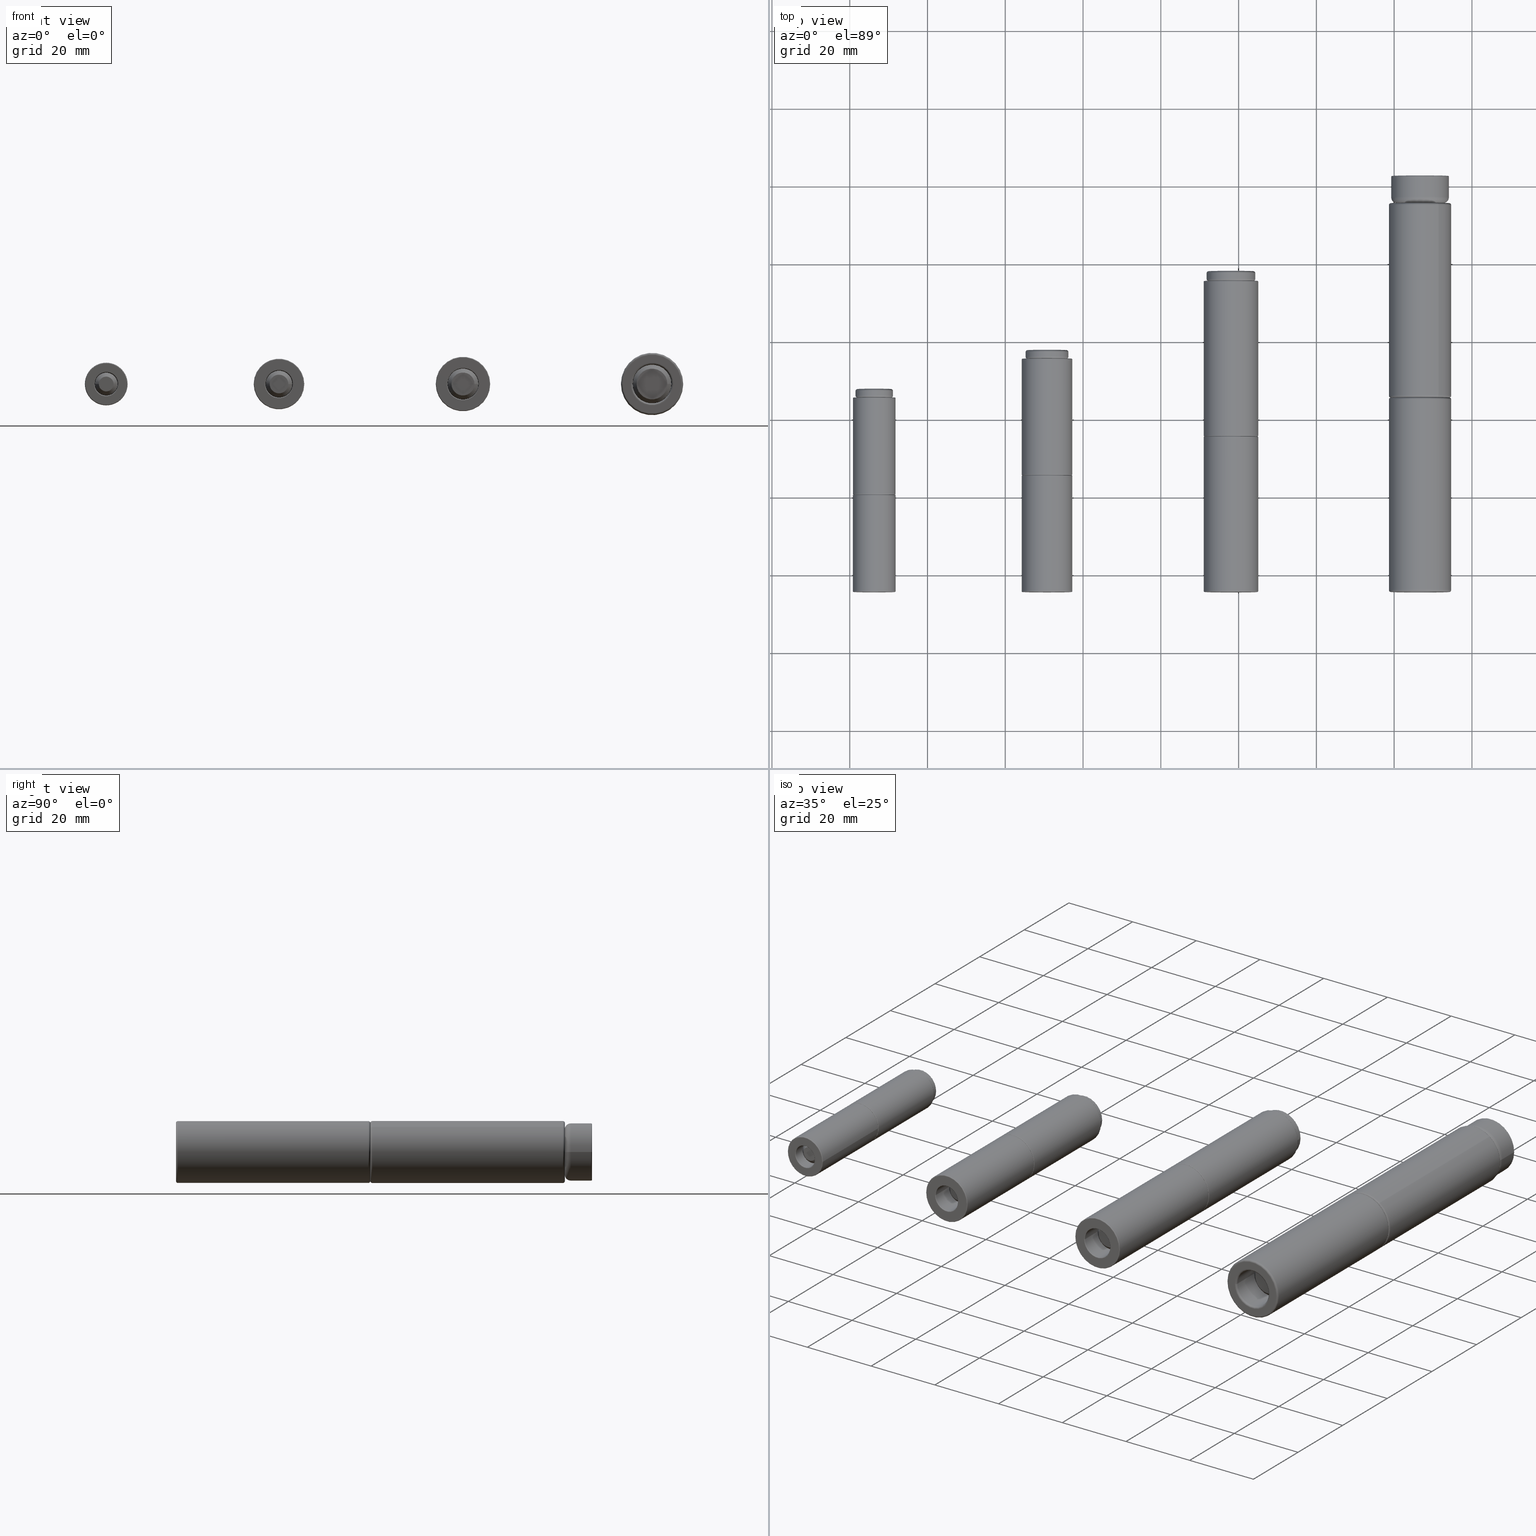
[diagram: canonical four-view strip — front | top / right | iso, engineering-drawing reading convention]
A machine part, canonical four-view strip (front | top / right | iso — engineering-drawing reading convention). The complete STEP part file that produces these views, byte-faithful:
ISO-10303-21;
HEADER;
/* Generated by software containing ST-Developer
 * from STEP Tools, Inc. (www.steptools.com) 
 */

FILE_DESCRIPTION(
/* description */ (''),
/* implementation_level */ '2;1');

FILE_NAME(
/* name */ '\\\\SYNOLOGYNAS\\web\\db2\\H-PT50-11_M\\\X2\B3C4BA74\X0\\\
H-PT50-11_M.stp',
/* time_stamp */ '2025-06-09T17:57:31+09:00',
/* author */ ('user'),
/* organization */ (''),
/* preprocessor_version */ 'ST-DEVELOPER v15.6',
/* originating_system */ 'Autodesk Inventor 2015',
/* authorisation */ '');

FILE_SCHEMA (('AUTOMOTIVE_DESIGN { 1 0 10303 214 3 1 1 }'));
ENDSEC;

DATA;
#10=MECHANICAL_DESIGN_GEOMETRIC_PRESENTATION_REPRESENTATION('',(#101,#102,
#95,#96,#98,#97,#99,#100),#1482);
#11=ITEM_DEFINED_TRANSFORMATION($,$,#783,#817);
#12=ITEM_DEFINED_TRANSFORMATION($,$,#800,#818);
#13=ITEM_DEFINED_TRANSFORMATION($,$,#783,#819);
#14=ITEM_DEFINED_TRANSFORMATION($,$,#820,#854);
#15=ITEM_DEFINED_TRANSFORMATION($,$,#837,#855);
#16=ITEM_DEFINED_TRANSFORMATION($,$,#820,#856);
#17=ITEM_DEFINED_TRANSFORMATION($,$,#857,#891);
#18=ITEM_DEFINED_TRANSFORMATION($,$,#857,#892);
#19=ITEM_DEFINED_TRANSFORMATION($,$,#874,#893);
#20=ITEM_DEFINED_TRANSFORMATION($,$,#894,#928);
#21=ITEM_DEFINED_TRANSFORMATION($,$,#894,#929);
#22=ITEM_DEFINED_TRANSFORMATION($,$,#911,#930);
#23=ITEM_DEFINED_TRANSFORMATION($,$,#816,#932);
#24=ITEM_DEFINED_TRANSFORMATION($,$,#853,#933);
#25=ITEM_DEFINED_TRANSFORMATION($,$,#890,#934);
#26=ITEM_DEFINED_TRANSFORMATION($,$,#927,#935);
#27=(
REPRESENTATION_RELATIONSHIP($,$,#1531,#1533)
REPRESENTATION_RELATIONSHIP_WITH_TRANSFORMATION(#11)
SHAPE_REPRESENTATION_RELATIONSHIP()
);
#28=(
REPRESENTATION_RELATIONSHIP($,$,#1532,#1533)
REPRESENTATION_RELATIONSHIP_WITH_TRANSFORMATION(#12)
SHAPE_REPRESENTATION_RELATIONSHIP()
);
#29=(
REPRESENTATION_RELATIONSHIP($,$,#1531,#1533)
REPRESENTATION_RELATIONSHIP_WITH_TRANSFORMATION(#13)
SHAPE_REPRESENTATION_RELATIONSHIP()
);
#30=(
REPRESENTATION_RELATIONSHIP($,$,#1534,#1536)
REPRESENTATION_RELATIONSHIP_WITH_TRANSFORMATION(#14)
SHAPE_REPRESENTATION_RELATIONSHIP()
);
#31=(
REPRESENTATION_RELATIONSHIP($,$,#1535,#1536)
REPRESENTATION_RELATIONSHIP_WITH_TRANSFORMATION(#15)
SHAPE_REPRESENTATION_RELATIONSHIP()
);
#32=(
REPRESENTATION_RELATIONSHIP($,$,#1534,#1536)
REPRESENTATION_RELATIONSHIP_WITH_TRANSFORMATION(#16)
SHAPE_REPRESENTATION_RELATIONSHIP()
);
#33=(
REPRESENTATION_RELATIONSHIP($,$,#1537,#1539)
REPRESENTATION_RELATIONSHIP_WITH_TRANSFORMATION(#17)
SHAPE_REPRESENTATION_RELATIONSHIP()
);
#34=(
REPRESENTATION_RELATIONSHIP($,$,#1537,#1539)
REPRESENTATION_RELATIONSHIP_WITH_TRANSFORMATION(#18)
SHAPE_REPRESENTATION_RELATIONSHIP()
);
#35=(
REPRESENTATION_RELATIONSHIP($,$,#1538,#1539)
REPRESENTATION_RELATIONSHIP_WITH_TRANSFORMATION(#19)
SHAPE_REPRESENTATION_RELATIONSHIP()
);
#36=(
REPRESENTATION_RELATIONSHIP($,$,#1540,#1542)
REPRESENTATION_RELATIONSHIP_WITH_TRANSFORMATION(#20)
SHAPE_REPRESENTATION_RELATIONSHIP()
);
#37=(
REPRESENTATION_RELATIONSHIP($,$,#1540,#1542)
REPRESENTATION_RELATIONSHIP_WITH_TRANSFORMATION(#21)
SHAPE_REPRESENTATION_RELATIONSHIP()
);
#38=(
REPRESENTATION_RELATIONSHIP($,$,#1541,#1542)
REPRESENTATION_RELATIONSHIP_WITH_TRANSFORMATION(#22)
SHAPE_REPRESENTATION_RELATIONSHIP()
);
#39=(
REPRESENTATION_RELATIONSHIP($,$,#1533,#1543)
REPRESENTATION_RELATIONSHIP_WITH_TRANSFORMATION(#23)
SHAPE_REPRESENTATION_RELATIONSHIP()
);
#40=(
REPRESENTATION_RELATIONSHIP($,$,#1536,#1543)
REPRESENTATION_RELATIONSHIP_WITH_TRANSFORMATION(#24)
SHAPE_REPRESENTATION_RELATIONSHIP()
);
#41=(
REPRESENTATION_RELATIONSHIP($,$,#1539,#1543)
REPRESENTATION_RELATIONSHIP_WITH_TRANSFORMATION(#25)
SHAPE_REPRESENTATION_RELATIONSHIP()
);
#42=(
REPRESENTATION_RELATIONSHIP($,$,#1542,#1543)
REPRESENTATION_RELATIONSHIP_WITH_TRANSFORMATION(#26)
SHAPE_REPRESENTATION_RELATIONSHIP()
);
#43=CONTEXT_DEPENDENT_SHAPE_REPRESENTATION(#27,#1505);
#44=CONTEXT_DEPENDENT_SHAPE_REPRESENTATION(#28,#1506);
#45=CONTEXT_DEPENDENT_SHAPE_REPRESENTATION(#29,#1507);
#46=CONTEXT_DEPENDENT_SHAPE_REPRESENTATION(#30,#1511);
#47=CONTEXT_DEPENDENT_SHAPE_REPRESENTATION(#31,#1512);
#48=CONTEXT_DEPENDENT_SHAPE_REPRESENTATION(#32,#1513);
#49=CONTEXT_DEPENDENT_SHAPE_REPRESENTATION(#33,#1517);
#50=CONTEXT_DEPENDENT_SHAPE_REPRESENTATION(#34,#1518);
#51=CONTEXT_DEPENDENT_SHAPE_REPRESENTATION(#35,#1519);
#52=CONTEXT_DEPENDENT_SHAPE_REPRESENTATION(#36,#1523);
#53=CONTEXT_DEPENDENT_SHAPE_REPRESENTATION(#37,#1524);
#54=CONTEXT_DEPENDENT_SHAPE_REPRESENTATION(#38,#1525);
#55=CONTEXT_DEPENDENT_SHAPE_REPRESENTATION(#39,#1527);
#56=CONTEXT_DEPENDENT_SHAPE_REPRESENTATION(#40,#1528);
#57=CONTEXT_DEPENDENT_SHAPE_REPRESENTATION(#41,#1529);
#58=CONTEXT_DEPENDENT_SHAPE_REPRESENTATION(#42,#1530);
#59=NEXT_ASSEMBLY_USAGE_OCCURRENCE('H-PT50-11P:1',$,$,#1547,#1545,$);
#60=NEXT_ASSEMBLY_USAGE_OCCURRENCE('H-PT50-11PP:1',$,$,#1547,#1546,$);
#61=NEXT_ASSEMBLY_USAGE_OCCURRENCE('H-PT50-11P:2',$,$,#1547,#1545,$);
#62=NEXT_ASSEMBLY_USAGE_OCCURRENCE('H-PT60-13P:1',$,$,#1550,#1548,$);
#63=NEXT_ASSEMBLY_USAGE_OCCURRENCE('H-PT60-13PP:1',$,$,#1550,#1549,$);
#64=NEXT_ASSEMBLY_USAGE_OCCURRENCE('H-PT60-13P:2',$,$,#1550,#1548,$);
#65=NEXT_ASSEMBLY_USAGE_OCCURRENCE('H-PT100-16P:1',$,$,#1553,#1551,$);
#66=NEXT_ASSEMBLY_USAGE_OCCURRENCE('H-PT100-16P:2',$,$,#1553,#1551,$);
#67=NEXT_ASSEMBLY_USAGE_OCCURRENCE('H-PT100-16PP:1',$,$,#1553,#1552,$);
#68=NEXT_ASSEMBLY_USAGE_OCCURRENCE('H-PT80-14P:1',$,$,#1556,#1554,$);
#69=NEXT_ASSEMBLY_USAGE_OCCURRENCE('H-PT80-14P:2',$,$,#1556,#1554,$);
#70=NEXT_ASSEMBLY_USAGE_OCCURRENCE('H-PT80-14PP:1',$,$,#1556,#1555,$);
#71=NEXT_ASSEMBLY_USAGE_OCCURRENCE('H-PT50-11:1',$,$,#1557,#1547,$);
#72=NEXT_ASSEMBLY_USAGE_OCCURRENCE('H-PT60-13:1',$,$,#1557,#1550,$);
#73=NEXT_ASSEMBLY_USAGE_OCCURRENCE('H-PT100-16:1',$,$,#1557,#1553,$);
#74=NEXT_ASSEMBLY_USAGE_OCCURRENCE('H-PT80-14:1',$,$,#1557,#1556,$);
#75=CONICAL_SURFACE('',#801,2.4,45.);
#76=CONICAL_SURFACE('',#838,2.9,45.);
#77=CONICAL_SURFACE('',#875,4.45,45.0000000000001);
#78=CONICAL_SURFACE('',#922,3.44999999999999,45.0000000000006);
#79=SHAPE_REPRESENTATION_RELATIONSHIP('SRR','None',#1531,#87);
#80=SHAPE_REPRESENTATION_RELATIONSHIP('SRR','None',#1532,#88);
#81=SHAPE_REPRESENTATION_RELATIONSHIP('SRR','None',#1534,#89);
#82=SHAPE_REPRESENTATION_RELATIONSHIP('SRR','None',#1535,#90);
#83=SHAPE_REPRESENTATION_RELATIONSHIP('SRR','None',#1537,#91);
#84=SHAPE_REPRESENTATION_RELATIONSHIP('SRR','None',#1538,#92);
#85=SHAPE_REPRESENTATION_RELATIONSHIP('SRR','None',#1540,#93);
#86=SHAPE_REPRESENTATION_RELATIONSHIP('SRR','None',#1541,#94);
#87=ADVANCED_BREP_SHAPE_REPRESENTATION($,(#103),#1469);
#88=ADVANCED_BREP_SHAPE_REPRESENTATION($,(#104),#1470);
#89=ADVANCED_BREP_SHAPE_REPRESENTATION($,(#105),#1472);
#90=ADVANCED_BREP_SHAPE_REPRESENTATION($,(#106),#1473);
#91=ADVANCED_BREP_SHAPE_REPRESENTATION($,(#107),#1475);
#92=ADVANCED_BREP_SHAPE_REPRESENTATION($,(#108),#1476);
#93=ADVANCED_BREP_SHAPE_REPRESENTATION($,(#109),#1478);
#94=ADVANCED_BREP_SHAPE_REPRESENTATION($,(#110),#1479);
#95=STYLED_ITEM('',(#1604),#103);
#96=STYLED_ITEM('',(#1605),#104);
#97=STYLED_ITEM('',(#1606),#105);
#98=STYLED_ITEM('',(#1607),#106);
#99=STYLED_ITEM('',(#1608),#107);
#100=STYLED_ITEM('',(#1609),#108);
#101=STYLED_ITEM('',(#1610),#109);
#102=STYLED_ITEM('',(#1611),#110);
#103=MANIFOLD_SOLID_BREP('\X2\C194B9ACB4DC\X0\1',#775);
#104=MANIFOLD_SOLID_BREP('\X2\C194B9ACB4DC\X0\1',#776);
#105=MANIFOLD_SOLID_BREP('\X2\C194B9ACB4DC\X0\1',#777);
#106=MANIFOLD_SOLID_BREP('\X2\C194B9ACB4DC\X0\1',#778);
#107=MANIFOLD_SOLID_BREP('\X2\C194B9ACB4DC\X0\1',#779);
#108=MANIFOLD_SOLID_BREP('\X2\C194B9ACB4DC\X0\2',#780);
#109=MANIFOLD_SOLID_BREP('\X2\C194B9ACB4DC\X0\1',#781);
#110=MANIFOLD_SOLID_BREP('\X2\C194B9ACB4DC\X0\2',#782);
#111=PLANE('',#789);
#112=PLANE('',#793);
#113=PLANE('',#804);
#114=PLANE('',#812);
#115=PLANE('',#815);
#116=PLANE('',#824);
#117=PLANE('',#834);
#118=PLANE('',#841);
#119=PLANE('',#849);
#120=PLANE('',#852);
#121=PLANE('',#861);
#122=PLANE('',#871);
#123=PLANE('',#878);
#124=PLANE('',#886);
#125=PLANE('',#889);
#126=PLANE('',#898);
#127=PLANE('',#908);
#128=PLANE('',#917);
#129=PLANE('',#920);
#130=PLANE('',#925);
#131=CYLINDRICAL_SURFACE('',#787,3.);
#132=CYLINDRICAL_SURFACE('',#797,5.5);
#133=CYLINDRICAL_SURFACE('',#805,2.9);
#134=CYLINDRICAL_SURFACE('',#810,4.8);
#135=CYLINDRICAL_SURFACE('',#826,3.5);
#136=CYLINDRICAL_SURFACE('',#830,6.5);
#137=CYLINDRICAL_SURFACE('',#842,3.4);
#138=CYLINDRICAL_SURFACE('',#847,5.5);
#139=CYLINDRICAL_SURFACE('',#863,5.);
#140=CYLINDRICAL_SURFACE('',#867,8.);
#141=CYLINDRICAL_SURFACE('',#879,4.95);
#142=CYLINDRICAL_SURFACE('',#884,7.4);
#143=CYLINDRICAL_SURFACE('',#900,7.);
#144=CYLINDRICAL_SURFACE('',#904,4.);
#145=CYLINDRICAL_SURFACE('',#915,6.25);
#146=CYLINDRICAL_SURFACE('',#926,3.95);
#147=FACE_BOUND('',#268,.T.);
#148=FACE_BOUND('',#270,.T.);
#149=FACE_BOUND('',#272,.T.);
#150=FACE_BOUND('',#274,.T.);
#151=FACE_BOUND('',#276,.T.);
#152=FACE_BOUND('',#278,.T.);
#153=FACE_BOUND('',#280,.T.);
#154=FACE_BOUND('',#282,.T.);
#155=FACE_BOUND('',#284,.T.);
#156=FACE_BOUND('',#287,.T.);
#157=FACE_BOUND('',#289,.T.);
#158=FACE_BOUND('',#291,.T.);
#159=FACE_BOUND('',#293,.T.);
#160=FACE_BOUND('',#295,.T.);
#161=FACE_BOUND('',#298,.T.);
#162=FACE_BOUND('',#300,.T.);
#163=FACE_BOUND('',#302,.T.);
#164=FACE_BOUND('',#304,.T.);
#165=FACE_BOUND('',#306,.T.);
#166=FACE_BOUND('',#308,.T.);
#167=FACE_BOUND('',#310,.T.);
#168=FACE_BOUND('',#312,.T.);
#169=FACE_BOUND('',#314,.T.);
#170=FACE_BOUND('',#317,.T.);
#171=FACE_BOUND('',#319,.T.);
#172=FACE_BOUND('',#321,.T.);
#173=FACE_BOUND('',#324,.T.);
#174=FACE_BOUND('',#326,.T.);
#175=FACE_BOUND('',#328,.T.);
#176=FACE_BOUND('',#330,.T.);
#177=FACE_BOUND('',#332,.T.);
#178=FACE_BOUND('',#334,.T.);
#179=FACE_BOUND('',#336,.T.);
#180=FACE_BOUND('',#338,.T.);
#181=FACE_BOUND('',#340,.T.);
#182=FACE_BOUND('',#342,.T.);
#183=FACE_BOUND('',#344,.T.);
#184=FACE_BOUND('',#347,.T.);
#185=FACE_BOUND('',#349,.T.);
#186=FACE_BOUND('',#351,.T.);
#187=FACE_BOUND('',#354,.T.);
#188=FACE_BOUND('',#356,.T.);
#189=FACE_BOUND('',#358,.T.);
#190=FACE_BOUND('',#360,.T.);
#191=FACE_BOUND('',#362,.T.);
#192=FACE_BOUND('',#364,.T.);
#193=FACE_BOUND('',#366,.T.);
#194=FACE_BOUND('',#368,.T.);
#195=FACE_BOUND('',#370,.T.);
#196=FACE_BOUND('',#372,.T.);
#197=FACE_BOUND('',#374,.T.);
#198=FACE_BOUND('',#376,.T.);
#199=FACE_BOUND('',#379,.T.);
#200=FACE_BOUND('',#381,.T.);
#201=FACE_BOUND('',#383,.T.);
#202=FACE_BOUND('',#386,.T.);
#203=FACE_OUTER_BOUND('',#267,.T.);
#204=FACE_OUTER_BOUND('',#269,.T.);
#205=FACE_OUTER_BOUND('',#271,.T.);
#206=FACE_OUTER_BOUND('',#273,.T.);
#207=FACE_OUTER_BOUND('',#275,.T.);
#208=FACE_OUTER_BOUND('',#277,.T.);
#209=FACE_OUTER_BOUND('',#279,.T.);
#210=FACE_OUTER_BOUND('',#281,.T.);
#211=FACE_OUTER_BOUND('',#283,.T.);
#212=FACE_OUTER_BOUND('',#285,.T.);
#213=FACE_OUTER_BOUND('',#286,.T.);
#214=FACE_OUTER_BOUND('',#288,.T.);
#215=FACE_OUTER_BOUND('',#290,.T.);
#216=FACE_OUTER_BOUND('',#292,.T.);
#217=FACE_OUTER_BOUND('',#294,.T.);
#218=FACE_OUTER_BOUND('',#296,.T.);
#219=FACE_OUTER_BOUND('',#297,.T.);
#220=FACE_OUTER_BOUND('',#299,.T.);
#221=FACE_OUTER_BOUND('',#301,.T.);
#222=FACE_OUTER_BOUND('',#303,.T.);
#223=FACE_OUTER_BOUND('',#305,.T.);
#224=FACE_OUTER_BOUND('',#307,.T.);
#225=FACE_OUTER_BOUND('',#309,.T.);
#226=FACE_OUTER_BOUND('',#311,.T.);
#227=FACE_OUTER_BOUND('',#313,.T.);
#228=FACE_OUTER_BOUND('',#315,.T.);
#229=FACE_OUTER_BOUND('',#316,.T.);
#230=FACE_OUTER_BOUND('',#318,.T.);
#231=FACE_OUTER_BOUND('',#320,.T.);
#232=FACE_OUTER_BOUND('',#322,.T.);
#233=FACE_OUTER_BOUND('',#323,.T.);
#234=FACE_OUTER_BOUND('',#325,.T.);
#235=FACE_OUTER_BOUND('',#327,.T.);
#236=FACE_OUTER_BOUND('',#329,.T.);
#237=FACE_OUTER_BOUND('',#331,.T.);
#238=FACE_OUTER_BOUND('',#333,.T.);
#239=FACE_OUTER_BOUND('',#335,.T.);
#240=FACE_OUTER_BOUND('',#337,.T.);
#241=FACE_OUTER_BOUND('',#339,.T.);
#242=FACE_OUTER_BOUND('',#341,.T.);
#243=FACE_OUTER_BOUND('',#343,.T.);
#244=FACE_OUTER_BOUND('',#345,.T.);
#245=FACE_OUTER_BOUND('',#346,.T.);
#246=FACE_OUTER_BOUND('',#348,.T.);
#247=FACE_OUTER_BOUND('',#350,.T.);
#248=FACE_OUTER_BOUND('',#352,.T.);
#249=FACE_OUTER_BOUND('',#353,.T.);
#250=FACE_OUTER_BOUND('',#355,.T.);
#251=FACE_OUTER_BOUND('',#357,.T.);
#252=FACE_OUTER_BOUND('',#359,.T.);
#253=FACE_OUTER_BOUND('',#361,.T.);
#254=FACE_OUTER_BOUND('',#363,.T.);
#255=FACE_OUTER_BOUND('',#365,.T.);
#256=FACE_OUTER_BOUND('',#367,.T.);
#257=FACE_OUTER_BOUND('',#369,.T.);
#258=FACE_OUTER_BOUND('',#371,.T.);
#259=FACE_OUTER_BOUND('',#373,.T.);
#260=FACE_OUTER_BOUND('',#375,.T.);
#261=FACE_OUTER_BOUND('',#377,.T.);
#262=FACE_OUTER_BOUND('',#378,.T.);
#263=FACE_OUTER_BOUND('',#380,.T.);
#264=FACE_OUTER_BOUND('',#382,.T.);
#265=FACE_OUTER_BOUND('',#384,.T.);
#266=FACE_OUTER_BOUND('',#385,.T.);
#267=EDGE_LOOP('',(#567));
#268=EDGE_LOOP('',(#568));
#269=EDGE_LOOP('',(#569));
#270=EDGE_LOOP('',(#570));
#271=EDGE_LOOP('',(#571));
#272=EDGE_LOOP('',(#572));
#273=EDGE_LOOP('',(#573));
#274=EDGE_LOOP('',(#574));
#275=EDGE_LOOP('',(#575));
#276=EDGE_LOOP('',(#576));
#277=EDGE_LOOP('',(#577));
#278=EDGE_LOOP('',(#578));
#279=EDGE_LOOP('',(#579));
#280=EDGE_LOOP('',(#580));
#281=EDGE_LOOP('',(#581));
#282=EDGE_LOOP('',(#582));
#283=EDGE_LOOP('',(#583));
#284=EDGE_LOOP('',(#584));
#285=EDGE_LOOP('',(#585));
#286=EDGE_LOOP('',(#586));
#287=EDGE_LOOP('',(#587));
#288=EDGE_LOOP('',(#588));
#289=EDGE_LOOP('',(#589));
#290=EDGE_LOOP('',(#590));
#291=EDGE_LOOP('',(#591));
#292=EDGE_LOOP('',(#592));
#293=EDGE_LOOP('',(#593));
#294=EDGE_LOOP('',(#594));
#295=EDGE_LOOP('',(#595));
#296=EDGE_LOOP('',(#596));
#297=EDGE_LOOP('',(#597));
#298=EDGE_LOOP('',(#598));
#299=EDGE_LOOP('',(#599));
#300=EDGE_LOOP('',(#600));
#301=EDGE_LOOP('',(#601));
#302=EDGE_LOOP('',(#602));
#303=EDGE_LOOP('',(#603));
#304=EDGE_LOOP('',(#604));
#305=EDGE_LOOP('',(#605));
#306=EDGE_LOOP('',(#606));
#307=EDGE_LOOP('',(#607));
#308=EDGE_LOOP('',(#608));
#309=EDGE_LOOP('',(#609));
#310=EDGE_LOOP('',(#610));
#311=EDGE_LOOP('',(#611));
#312=EDGE_LOOP('',(#612));
#313=EDGE_LOOP('',(#613));
#314=EDGE_LOOP('',(#614));
#315=EDGE_LOOP('',(#615));
#316=EDGE_LOOP('',(#616));
#317=EDGE_LOOP('',(#617));
#318=EDGE_LOOP('',(#618));
#319=EDGE_LOOP('',(#619));
#320=EDGE_LOOP('',(#620));
#321=EDGE_LOOP('',(#621));
#322=EDGE_LOOP('',(#622));
#323=EDGE_LOOP('',(#623));
#324=EDGE_LOOP('',(#624));
#325=EDGE_LOOP('',(#625));
#326=EDGE_LOOP('',(#626));
#327=EDGE_LOOP('',(#627));
#328=EDGE_LOOP('',(#628));
#329=EDGE_LOOP('',(#629));
#330=EDGE_LOOP('',(#630));
#331=EDGE_LOOP('',(#631));
#332=EDGE_LOOP('',(#632));
#333=EDGE_LOOP('',(#633));
#334=EDGE_LOOP('',(#634));
#335=EDGE_LOOP('',(#635));
#336=EDGE_LOOP('',(#636));
#337=EDGE_LOOP('',(#637));
#338=EDGE_LOOP('',(#638));
#339=EDGE_LOOP('',(#639));
#340=EDGE_LOOP('',(#640));
#341=EDGE_LOOP('',(#641));
#342=EDGE_LOOP('',(#642));
#343=EDGE_LOOP('',(#643));
#344=EDGE_LOOP('',(#644));
#345=EDGE_LOOP('',(#645));
#346=EDGE_LOOP('',(#646));
#347=EDGE_LOOP('',(#647));
#348=EDGE_LOOP('',(#648));
#349=EDGE_LOOP('',(#649));
#350=EDGE_LOOP('',(#650));
#351=EDGE_LOOP('',(#651));
#352=EDGE_LOOP('',(#652));
#353=EDGE_LOOP('',(#653));
#354=EDGE_LOOP('',(#654));
#355=EDGE_LOOP('',(#655));
#356=EDGE_LOOP('',(#656));
#357=EDGE_LOOP('',(#657));
#358=EDGE_LOOP('',(#658));
#359=EDGE_LOOP('',(#659));
#360=EDGE_LOOP('',(#660));
#361=EDGE_LOOP('',(#661));
#362=EDGE_LOOP('',(#662));
#363=EDGE_LOOP('',(#663));
#364=EDGE_LOOP('',(#664));
#365=EDGE_LOOP('',(#665));
#366=EDGE_LOOP('',(#666));
#367=EDGE_LOOP('',(#667));
#368=EDGE_LOOP('',(#668));
#369=EDGE_LOOP('',(#669));
#370=EDGE_LOOP('',(#670));
#371=EDGE_LOOP('',(#671));
#372=EDGE_LOOP('',(#672));
#373=EDGE_LOOP('',(#673));
#374=EDGE_LOOP('',(#674));
#375=EDGE_LOOP('',(#675));
#376=EDGE_LOOP('',(#676));
#377=EDGE_LOOP('',(#677));
#378=EDGE_LOOP('',(#678));
#379=EDGE_LOOP('',(#679));
#380=EDGE_LOOP('',(#680));
#381=EDGE_LOOP('',(#681));
#382=EDGE_LOOP('',(#682));
#383=EDGE_LOOP('',(#683));
#384=EDGE_LOOP('',(#684));
#385=EDGE_LOOP('',(#685));
#386=EDGE_LOOP('',(#686));
#387=CIRCLE('',#785,3.);
#388=CIRCLE('',#786,3.2);
#389=CIRCLE('',#788,3.);
#390=CIRCLE('',#790,5.3);
#391=CIRCLE('',#792,3.2);
#392=CIRCLE('',#794,5.3);
#393=CIRCLE('',#796,5.5);
#394=CIRCLE('',#798,5.5);
#395=CIRCLE('',#802,1.9);
#396=CIRCLE('',#803,2.9);
#397=CIRCLE('',#806,2.9);
#398=CIRCLE('',#808,4.3);
#399=CIRCLE('',#809,4.8);
#400=CIRCLE('',#811,4.8);
#401=CIRCLE('',#814,4.3);
#402=CIRCLE('',#822,3.5);
#403=CIRCLE('',#823,3.7);
#404=CIRCLE('',#825,6.3);
#405=CIRCLE('',#827,3.5);
#406=CIRCLE('',#829,6.5);
#407=CIRCLE('',#831,6.5);
#408=CIRCLE('',#833,3.7);
#409=CIRCLE('',#835,6.3);
#410=CIRCLE('',#839,2.4);
#411=CIRCLE('',#840,3.4);
#412=CIRCLE('',#843,3.4);
#413=CIRCLE('',#845,5.5);
#414=CIRCLE('',#846,5.);
#415=CIRCLE('',#848,5.5);
#416=CIRCLE('',#851,5.);
#417=CIRCLE('',#859,5.);
#418=CIRCLE('',#860,5.5);
#419=CIRCLE('',#862,7.5);
#420=CIRCLE('',#864,5.);
#421=CIRCLE('',#866,8.);
#422=CIRCLE('',#868,8.);
#423=CIRCLE('',#870,5.5);
#424=CIRCLE('',#872,7.5);
#425=CIRCLE('',#876,3.95);
#426=CIRCLE('',#877,4.95);
#427=CIRCLE('',#880,4.95);
#428=CIRCLE('',#882,7.4);
#429=CIRCLE('',#883,7.2);
#430=CIRCLE('',#885,7.4);
#431=CIRCLE('',#888,5.9);
#432=CIRCLE('',#896,7.);
#433=CIRCLE('',#897,6.8);
#434=CIRCLE('',#899,4.2);
#435=CIRCLE('',#901,7.);
#436=CIRCLE('',#903,4.);
#437=CIRCLE('',#905,4.);
#438=CIRCLE('',#907,4.2);
#439=CIRCLE('',#909,6.8);
#440=CIRCLE('',#913,6.25);
#441=CIRCLE('',#914,5.75);
#442=CIRCLE('',#916,6.25);
#443=CIRCLE('',#919,5.75);
#444=CIRCLE('',#921,3.95000000000002);
#445=CIRCLE('',#923,2.94999999999998);
#446=CIRCLE('',#924,3.95);
#447=VERTEX_POINT('',#1244);
#448=VERTEX_POINT('',#1246);
#449=VERTEX_POINT('',#1249);
#450=VERTEX_POINT('',#1252);
#451=VERTEX_POINT('',#1255);
#452=VERTEX_POINT('',#1258);
#453=VERTEX_POINT('',#1261);
#454=VERTEX_POINT('',#1264);
#455=VERTEX_POINT('',#1269);
#456=VERTEX_POINT('',#1271);
#457=VERTEX_POINT('',#1275);
#458=VERTEX_POINT('',#1278);
#459=VERTEX_POINT('',#1280);
#460=VERTEX_POINT('',#1283);
#461=VERTEX_POINT('',#1287);
#462=VERTEX_POINT('',#1296);
#463=VERTEX_POINT('',#1298);
#464=VERTEX_POINT('',#1301);
#465=VERTEX_POINT('',#1304);
#466=VERTEX_POINT('',#1307);
#467=VERTEX_POINT('',#1310);
#468=VERTEX_POINT('',#1313);
#469=VERTEX_POINT('',#1316);
#470=VERTEX_POINT('',#1321);
#471=VERTEX_POINT('',#1323);
#472=VERTEX_POINT('',#1327);
#473=VERTEX_POINT('',#1330);
#474=VERTEX_POINT('',#1332);
#475=VERTEX_POINT('',#1335);
#476=VERTEX_POINT('',#1339);
#477=VERTEX_POINT('',#1348);
#478=VERTEX_POINT('',#1350);
#479=VERTEX_POINT('',#1353);
#480=VERTEX_POINT('',#1356);
#481=VERTEX_POINT('',#1359);
#482=VERTEX_POINT('',#1362);
#483=VERTEX_POINT('',#1365);
#484=VERTEX_POINT('',#1368);
#485=VERTEX_POINT('',#1373);
#486=VERTEX_POINT('',#1375);
#487=VERTEX_POINT('',#1379);
#488=VERTEX_POINT('',#1382);
#489=VERTEX_POINT('',#1384);
#490=VERTEX_POINT('',#1387);
#491=VERTEX_POINT('',#1391);
#492=VERTEX_POINT('',#1400);
#493=VERTEX_POINT('',#1402);
#494=VERTEX_POINT('',#1405);
#495=VERTEX_POINT('',#1408);
#496=VERTEX_POINT('',#1411);
#497=VERTEX_POINT('',#1414);
#498=VERTEX_POINT('',#1417);
#499=VERTEX_POINT('',#1420);
#500=VERTEX_POINT('',#1425);
#501=VERTEX_POINT('',#1427);
#502=VERTEX_POINT('',#1430);
#503=VERTEX_POINT('',#1434);
#504=VERTEX_POINT('',#1437);
#505=VERTEX_POINT('',#1440);
#506=VERTEX_POINT('',#1442);
#507=EDGE_CURVE('',#447,#447,#387,.T.);
#508=EDGE_CURVE('',#448,#448,#388,.T.);
#509=EDGE_CURVE('',#449,#449,#389,.T.);
#510=EDGE_CURVE('',#450,#450,#390,.T.);
#511=EDGE_CURVE('',#451,#451,#391,.T.);
#512=EDGE_CURVE('',#452,#452,#392,.T.);
#513=EDGE_CURVE('',#453,#453,#393,.T.);
#514=EDGE_CURVE('',#454,#454,#394,.T.);
#515=EDGE_CURVE('',#455,#455,#395,.T.);
#516=EDGE_CURVE('',#456,#456,#396,.T.);
#517=EDGE_CURVE('',#457,#457,#397,.T.);
#518=EDGE_CURVE('',#458,#458,#398,.T.);
#519=EDGE_CURVE('',#459,#459,#399,.T.);
#520=EDGE_CURVE('',#460,#460,#400,.T.);
#521=EDGE_CURVE('',#461,#461,#401,.T.);
#522=EDGE_CURVE('',#462,#462,#402,.T.);
#523=EDGE_CURVE('',#463,#463,#403,.T.);
#524=EDGE_CURVE('',#464,#464,#404,.T.);
#525=EDGE_CURVE('',#465,#465,#405,.T.);
#526=EDGE_CURVE('',#466,#466,#406,.T.);
#527=EDGE_CURVE('',#467,#467,#407,.T.);
#528=EDGE_CURVE('',#468,#468,#408,.T.);
#529=EDGE_CURVE('',#469,#469,#409,.T.);
#530=EDGE_CURVE('',#470,#470,#410,.T.);
#531=EDGE_CURVE('',#471,#471,#411,.T.);
#532=EDGE_CURVE('',#472,#472,#412,.T.);
#533=EDGE_CURVE('',#473,#473,#413,.T.);
#534=EDGE_CURVE('',#474,#474,#414,.T.);
#535=EDGE_CURVE('',#475,#475,#415,.T.);
#536=EDGE_CURVE('',#476,#476,#416,.T.);
#537=EDGE_CURVE('',#477,#477,#417,.T.);
#538=EDGE_CURVE('',#478,#478,#418,.T.);
#539=EDGE_CURVE('',#479,#479,#419,.T.);
#540=EDGE_CURVE('',#480,#480,#420,.T.);
#541=EDGE_CURVE('',#481,#481,#421,.T.);
#542=EDGE_CURVE('',#482,#482,#422,.T.);
#543=EDGE_CURVE('',#483,#483,#423,.T.);
#544=EDGE_CURVE('',#484,#484,#424,.T.);
#545=EDGE_CURVE('',#485,#485,#425,.T.);
#546=EDGE_CURVE('',#486,#486,#426,.T.);
#547=EDGE_CURVE('',#487,#487,#427,.T.);
#548=EDGE_CURVE('',#488,#488,#428,.T.);
#549=EDGE_CURVE('',#489,#489,#429,.T.);
#550=EDGE_CURVE('',#490,#490,#430,.T.);
#551=EDGE_CURVE('',#491,#491,#431,.T.);
#552=EDGE_CURVE('',#492,#492,#432,.T.);
#553=EDGE_CURVE('',#493,#493,#433,.T.);
#554=EDGE_CURVE('',#494,#494,#434,.T.);
#555=EDGE_CURVE('',#495,#495,#435,.T.);
#556=EDGE_CURVE('',#496,#496,#436,.T.);
#557=EDGE_CURVE('',#497,#497,#437,.T.);
#558=EDGE_CURVE('',#498,#498,#438,.T.);
#559=EDGE_CURVE('',#499,#499,#439,.T.);
#560=EDGE_CURVE('',#500,#500,#440,.T.);
#561=EDGE_CURVE('',#501,#501,#441,.T.);
#562=EDGE_CURVE('',#502,#502,#442,.T.);
#563=EDGE_CURVE('',#503,#503,#443,.T.);
#564=EDGE_CURVE('',#504,#504,#444,.T.);
#565=EDGE_CURVE('',#505,#505,#445,.T.);
#566=EDGE_CURVE('',#506,#506,#446,.T.);
#567=ORIENTED_EDGE('',*,*,#507,.T.);
#568=ORIENTED_EDGE('',*,*,#508,.T.);
#569=ORIENTED_EDGE('',*,*,#509,.F.);
#570=ORIENTED_EDGE('',*,*,#507,.F.);
#571=ORIENTED_EDGE('',*,*,#510,.F.);
#572=ORIENTED_EDGE('',*,*,#508,.F.);
#573=ORIENTED_EDGE('',*,*,#509,.T.);
#574=ORIENTED_EDGE('',*,*,#511,.T.);
#575=ORIENTED_EDGE('',*,*,#512,.F.);
#576=ORIENTED_EDGE('',*,*,#511,.F.);
#577=ORIENTED_EDGE('',*,*,#513,.T.);
#578=ORIENTED_EDGE('',*,*,#510,.T.);
#579=ORIENTED_EDGE('',*,*,#514,.F.);
#580=ORIENTED_EDGE('',*,*,#513,.F.);
#581=ORIENTED_EDGE('',*,*,#514,.T.);
#582=ORIENTED_EDGE('',*,*,#512,.T.);
#583=ORIENTED_EDGE('',*,*,#515,.T.);
#584=ORIENTED_EDGE('',*,*,#516,.T.);
#585=ORIENTED_EDGE('',*,*,#515,.F.);
#586=ORIENTED_EDGE('',*,*,#517,.F.);
#587=ORIENTED_EDGE('',*,*,#516,.F.);
#588=ORIENTED_EDGE('',*,*,#518,.T.);
#589=ORIENTED_EDGE('',*,*,#519,.T.);
#590=ORIENTED_EDGE('',*,*,#520,.F.);
#591=ORIENTED_EDGE('',*,*,#519,.F.);
#592=ORIENTED_EDGE('',*,*,#518,.F.);
#593=ORIENTED_EDGE('',*,*,#517,.T.);
#594=ORIENTED_EDGE('',*,*,#520,.T.);
#595=ORIENTED_EDGE('',*,*,#521,.T.);
#596=ORIENTED_EDGE('',*,*,#521,.F.);
#597=ORIENTED_EDGE('',*,*,#522,.T.);
#598=ORIENTED_EDGE('',*,*,#523,.T.);
#599=ORIENTED_EDGE('',*,*,#524,.F.);
#600=ORIENTED_EDGE('',*,*,#523,.F.);
#601=ORIENTED_EDGE('',*,*,#525,.F.);
#602=ORIENTED_EDGE('',*,*,#522,.F.);
#603=ORIENTED_EDGE('',*,*,#526,.T.);
#604=ORIENTED_EDGE('',*,*,#524,.T.);
#605=ORIENTED_EDGE('',*,*,#527,.F.);
#606=ORIENTED_EDGE('',*,*,#526,.F.);
#607=ORIENTED_EDGE('',*,*,#525,.T.);
#608=ORIENTED_EDGE('',*,*,#528,.T.);
#609=ORIENTED_EDGE('',*,*,#529,.F.);
#610=ORIENTED_EDGE('',*,*,#528,.F.);
#611=ORIENTED_EDGE('',*,*,#527,.T.);
#612=ORIENTED_EDGE('',*,*,#529,.T.);
#613=ORIENTED_EDGE('',*,*,#530,.T.);
#614=ORIENTED_EDGE('',*,*,#531,.T.);
#615=ORIENTED_EDGE('',*,*,#530,.F.);
#616=ORIENTED_EDGE('',*,*,#532,.F.);
#617=ORIENTED_EDGE('',*,*,#531,.F.);
#618=ORIENTED_EDGE('',*,*,#533,.T.);
#619=ORIENTED_EDGE('',*,*,#534,.T.);
#620=ORIENTED_EDGE('',*,*,#535,.F.);
#621=ORIENTED_EDGE('',*,*,#533,.F.);
#622=ORIENTED_EDGE('',*,*,#534,.F.);
#623=ORIENTED_EDGE('',*,*,#536,.T.);
#624=ORIENTED_EDGE('',*,*,#535,.T.);
#625=ORIENTED_EDGE('',*,*,#536,.F.);
#626=ORIENTED_EDGE('',*,*,#532,.T.);
#627=ORIENTED_EDGE('',*,*,#537,.T.);
#628=ORIENTED_EDGE('',*,*,#538,.T.);
#629=ORIENTED_EDGE('',*,*,#539,.F.);
#630=ORIENTED_EDGE('',*,*,#538,.F.);
#631=ORIENTED_EDGE('',*,*,#540,.F.);
#632=ORIENTED_EDGE('',*,*,#537,.F.);
#633=ORIENTED_EDGE('',*,*,#541,.T.);
#634=ORIENTED_EDGE('',*,*,#539,.T.);
#635=ORIENTED_EDGE('',*,*,#542,.F.);
#636=ORIENTED_EDGE('',*,*,#541,.F.);
#637=ORIENTED_EDGE('',*,*,#540,.T.);
#638=ORIENTED_EDGE('',*,*,#543,.T.);
#639=ORIENTED_EDGE('',*,*,#544,.F.);
#640=ORIENTED_EDGE('',*,*,#543,.F.);
#641=ORIENTED_EDGE('',*,*,#542,.T.);
#642=ORIENTED_EDGE('',*,*,#544,.T.);
#643=ORIENTED_EDGE('',*,*,#545,.T.);
#644=ORIENTED_EDGE('',*,*,#546,.T.);
#645=ORIENTED_EDGE('',*,*,#545,.F.);
#646=ORIENTED_EDGE('',*,*,#547,.F.);
#647=ORIENTED_EDGE('',*,*,#546,.F.);
#648=ORIENTED_EDGE('',*,*,#548,.T.);
#649=ORIENTED_EDGE('',*,*,#549,.T.);
#650=ORIENTED_EDGE('',*,*,#550,.F.);
#651=ORIENTED_EDGE('',*,*,#548,.F.);
#652=ORIENTED_EDGE('',*,*,#549,.F.);
#653=ORIENTED_EDGE('',*,*,#551,.T.);
#654=ORIENTED_EDGE('',*,*,#550,.T.);
#655=ORIENTED_EDGE('',*,*,#551,.F.);
#656=ORIENTED_EDGE('',*,*,#547,.T.);
#657=ORIENTED_EDGE('',*,*,#552,.T.);
#658=ORIENTED_EDGE('',*,*,#553,.T.);
#659=ORIENTED_EDGE('',*,*,#553,.F.);
#660=ORIENTED_EDGE('',*,*,#554,.F.);
#661=ORIENTED_EDGE('',*,*,#555,.F.);
#662=ORIENTED_EDGE('',*,*,#552,.F.);
#663=ORIENTED_EDGE('',*,*,#556,.T.);
#664=ORIENTED_EDGE('',*,*,#554,.T.);
#665=ORIENTED_EDGE('',*,*,#557,.F.);
#666=ORIENTED_EDGE('',*,*,#556,.F.);
#667=ORIENTED_EDGE('',*,*,#557,.T.);
#668=ORIENTED_EDGE('',*,*,#558,.T.);
#669=ORIENTED_EDGE('',*,*,#559,.F.);
#670=ORIENTED_EDGE('',*,*,#558,.F.);
#671=ORIENTED_EDGE('',*,*,#555,.T.);
#672=ORIENTED_EDGE('',*,*,#559,.T.);
#673=ORIENTED_EDGE('',*,*,#560,.T.);
#674=ORIENTED_EDGE('',*,*,#561,.T.);
#675=ORIENTED_EDGE('',*,*,#562,.F.);
#676=ORIENTED_EDGE('',*,*,#560,.F.);
#677=ORIENTED_EDGE('',*,*,#561,.F.);
#678=ORIENTED_EDGE('',*,*,#563,.T.);
#679=ORIENTED_EDGE('',*,*,#562,.T.);
#680=ORIENTED_EDGE('',*,*,#563,.F.);
#681=ORIENTED_EDGE('',*,*,#564,.T.);
#682=ORIENTED_EDGE('',*,*,#565,.T.);
#683=ORIENTED_EDGE('',*,*,#566,.T.);
#684=ORIENTED_EDGE('',*,*,#565,.F.);
#685=ORIENTED_EDGE('',*,*,#564,.F.);
#686=ORIENTED_EDGE('',*,*,#566,.F.);
#687=TOROIDAL_SURFACE('',#784,3.2,0.2);
#688=TOROIDAL_SURFACE('',#791,3.2,0.2);
#689=TOROIDAL_SURFACE('',#795,5.3,0.2);
#690=TOROIDAL_SURFACE('',#799,5.3,0.2);
#691=TOROIDAL_SURFACE('',#807,4.3,0.5);
#692=TOROIDAL_SURFACE('',#813,4.3,0.5);
#693=TOROIDAL_SURFACE('',#821,3.7,0.2);
#694=TOROIDAL_SURFACE('',#828,6.3,0.2);
#695=TOROIDAL_SURFACE('',#832,3.7,0.2);
#696=TOROIDAL_SURFACE('',#836,6.3,0.2);
#697=TOROIDAL_SURFACE('',#844,5.,0.5);
#698=TOROIDAL_SURFACE('',#850,5.,0.5);
#699=TOROIDAL_SURFACE('',#858,5.5,0.5);
#700=TOROIDAL_SURFACE('',#865,7.5,0.5);
#701=TOROIDAL_SURFACE('',#869,5.5,0.5);
#702=TOROIDAL_SURFACE('',#873,7.5,0.5);
#703=TOROIDAL_SURFACE('',#881,7.2,0.2);
#704=TOROIDAL_SURFACE('',#887,5.9,1.5);
#705=TOROIDAL_SURFACE('',#895,6.8,0.2);
#706=TOROIDAL_SURFACE('',#902,4.2,0.2);
#707=TOROIDAL_SURFACE('',#906,4.2,0.2);
#708=TOROIDAL_SURFACE('',#910,6.8,0.2);
#709=TOROIDAL_SURFACE('',#912,5.75,0.5);
#710=TOROIDAL_SURFACE('',#918,5.75,0.5);
#711=ADVANCED_FACE('',(#203,#147),#687,.T.);
#712=ADVANCED_FACE('',(#204,#148),#131,.F.);
#713=ADVANCED_FACE('',(#205,#149),#111,.F.);
#714=ADVANCED_FACE('',(#206,#150),#688,.T.);
#715=ADVANCED_FACE('',(#207,#151),#112,.T.);
#716=ADVANCED_FACE('',(#208,#152),#689,.T.);
#717=ADVANCED_FACE('',(#209,#153),#132,.T.);
#718=ADVANCED_FACE('',(#210,#154),#690,.T.);
#719=ADVANCED_FACE('',(#211,#155),#75,.T.);
#720=ADVANCED_FACE('',(#212),#113,.T.);
#721=ADVANCED_FACE('',(#213,#156),#133,.T.);
#722=ADVANCED_FACE('',(#214,#157),#691,.T.);
#723=ADVANCED_FACE('',(#215,#158),#134,.T.);
#724=ADVANCED_FACE('',(#216,#159),#114,.T.);
#725=ADVANCED_FACE('',(#217,#160),#692,.T.);
#726=ADVANCED_FACE('',(#218),#115,.T.);
#727=ADVANCED_FACE('',(#219,#161),#693,.T.);
#728=ADVANCED_FACE('',(#220,#162),#116,.F.);
#729=ADVANCED_FACE('',(#221,#163),#135,.F.);
#730=ADVANCED_FACE('',(#222,#164),#694,.T.);
#731=ADVANCED_FACE('',(#223,#165),#136,.T.);
#732=ADVANCED_FACE('',(#224,#166),#695,.T.);
#733=ADVANCED_FACE('',(#225,#167),#117,.T.);
#734=ADVANCED_FACE('',(#226,#168),#696,.T.);
#735=ADVANCED_FACE('',(#227,#169),#76,.T.);
#736=ADVANCED_FACE('',(#228),#118,.T.);
#737=ADVANCED_FACE('',(#229,#170),#137,.T.);
#738=ADVANCED_FACE('',(#230,#171),#697,.T.);
#739=ADVANCED_FACE('',(#231,#172),#138,.T.);
#740=ADVANCED_FACE('',(#232),#119,.T.);
#741=ADVANCED_FACE('',(#233,#173),#698,.T.);
#742=ADVANCED_FACE('',(#234,#174),#120,.T.);
#743=ADVANCED_FACE('',(#235,#175),#699,.T.);
#744=ADVANCED_FACE('',(#236,#176),#121,.F.);
#745=ADVANCED_FACE('',(#237,#177),#139,.F.);
#746=ADVANCED_FACE('',(#238,#178),#700,.T.);
#747=ADVANCED_FACE('',(#239,#179),#140,.T.);
#748=ADVANCED_FACE('',(#240,#180),#701,.T.);
#749=ADVANCED_FACE('',(#241,#181),#122,.T.);
#750=ADVANCED_FACE('',(#242,#182),#702,.T.);
#751=ADVANCED_FACE('',(#243,#183),#77,.T.);
#752=ADVANCED_FACE('',(#244),#123,.T.);
#753=ADVANCED_FACE('',(#245,#184),#141,.T.);
#754=ADVANCED_FACE('',(#246,#185),#703,.T.);
#755=ADVANCED_FACE('',(#247,#186),#142,.T.);
#756=ADVANCED_FACE('',(#248),#124,.T.);
#757=ADVANCED_FACE('',(#249,#187),#704,.T.);
#758=ADVANCED_FACE('',(#250,#188),#125,.T.);
#759=ADVANCED_FACE('',(#251,#189),#705,.T.);
#760=ADVANCED_FACE('',(#252,#190),#126,.F.);
#761=ADVANCED_FACE('',(#253,#191),#143,.T.);
#762=ADVANCED_FACE('',(#254,#192),#706,.T.);
#763=ADVANCED_FACE('',(#255,#193),#144,.F.);
#764=ADVANCED_FACE('',(#256,#194),#707,.T.);
#765=ADVANCED_FACE('',(#257,#195),#127,.T.);
#766=ADVANCED_FACE('',(#258,#196),#708,.T.);
#767=ADVANCED_FACE('',(#259,#197),#709,.T.);
#768=ADVANCED_FACE('',(#260,#198),#145,.T.);
#769=ADVANCED_FACE('',(#261),#128,.T.);
#770=ADVANCED_FACE('',(#262,#199),#710,.T.);
#771=ADVANCED_FACE('',(#263,#200),#129,.T.);
#772=ADVANCED_FACE('',(#264,#201),#78,.T.);
#773=ADVANCED_FACE('',(#265),#130,.T.);
#774=ADVANCED_FACE('',(#266,#202),#146,.T.);
#775=CLOSED_SHELL('',(#711,#712,#713,#714,#715,#716,#717,#718));
#776=CLOSED_SHELL('',(#719,#720,#721,#722,#723,#724,#725,#726));
#777=CLOSED_SHELL('',(#727,#728,#729,#730,#731,#732,#733,#734));
#778=CLOSED_SHELL('',(#735,#736,#737,#738,#739,#740,#741,#742));
#779=CLOSED_SHELL('',(#743,#744,#745,#746,#747,#748,#749,#750));
#780=CLOSED_SHELL('',(#751,#752,#753,#754,#755,#756,#757,#758));
#781=CLOSED_SHELL('',(#759,#760,#761,#762,#763,#764,#765,#766));
#782=CLOSED_SHELL('',(#767,#768,#769,#770,#771,#772,#773,#774));
#783=AXIS2_PLACEMENT_3D('placement',#1242,#936,#937);
#784=AXIS2_PLACEMENT_3D('',#1243,#938,#939);
#785=AXIS2_PLACEMENT_3D('',#1245,#940,#941);
#786=AXIS2_PLACEMENT_3D('',#1247,#942,#943);
#787=AXIS2_PLACEMENT_3D('',#1248,#944,#945);
#788=AXIS2_PLACEMENT_3D('',#1250,#946,#947);
#789=AXIS2_PLACEMENT_3D('',#1251,#948,#949);
#790=AXIS2_PLACEMENT_3D('',#1253,#950,#951);
#791=AXIS2_PLACEMENT_3D('',#1254,#952,#953);
#792=AXIS2_PLACEMENT_3D('',#1256,#954,#955);
#793=AXIS2_PLACEMENT_3D('',#1257,#956,#957);
#794=AXIS2_PLACEMENT_3D('',#1259,#958,#959);
#795=AXIS2_PLACEMENT_3D('',#1260,#960,#961);
#796=AXIS2_PLACEMENT_3D('',#1262,#962,#963);
#797=AXIS2_PLACEMENT_3D('',#1263,#964,#965);
#798=AXIS2_PLACEMENT_3D('',#1265,#966,#967);
#799=AXIS2_PLACEMENT_3D('',#1266,#968,#969);
#800=AXIS2_PLACEMENT_3D('placement',#1267,#970,#971);
#801=AXIS2_PLACEMENT_3D('',#1268,#972,#973);
#802=AXIS2_PLACEMENT_3D('',#1270,#974,#975);
#803=AXIS2_PLACEMENT_3D('',#1272,#976,#977);
#804=AXIS2_PLACEMENT_3D('',#1273,#978,#979);
#805=AXIS2_PLACEMENT_3D('',#1274,#980,#981);
#806=AXIS2_PLACEMENT_3D('',#1276,#982,#983);
#807=AXIS2_PLACEMENT_3D('',#1277,#984,#985);
#808=AXIS2_PLACEMENT_3D('',#1279,#986,#987);
#809=AXIS2_PLACEMENT_3D('',#1281,#988,#989);
#810=AXIS2_PLACEMENT_3D('',#1282,#990,#991);
#811=AXIS2_PLACEMENT_3D('',#1284,#992,#993);
#812=AXIS2_PLACEMENT_3D('',#1285,#994,#995);
#813=AXIS2_PLACEMENT_3D('',#1286,#996,#997);
#814=AXIS2_PLACEMENT_3D('',#1288,#998,#999);
#815=AXIS2_PLACEMENT_3D('',#1289,#1000,#1001);
#816=AXIS2_PLACEMENT_3D('placement',#1290,#1002,#1003);
#817=AXIS2_PLACEMENT_3D('',#1291,#1004,#1005);
#818=AXIS2_PLACEMENT_3D('',#1292,#1006,#1007);
#819=AXIS2_PLACEMENT_3D('',#1293,#1008,#1009);
#820=AXIS2_PLACEMENT_3D('placement',#1294,#1010,#1011);
#821=AXIS2_PLACEMENT_3D('',#1295,#1012,#1013);
#822=AXIS2_PLACEMENT_3D('',#1297,#1014,#1015);
#823=AXIS2_PLACEMENT_3D('',#1299,#1016,#1017);
#824=AXIS2_PLACEMENT_3D('',#1300,#1018,#1019);
#825=AXIS2_PLACEMENT_3D('',#1302,#1020,#1021);
#826=AXIS2_PLACEMENT_3D('',#1303,#1022,#1023);
#827=AXIS2_PLACEMENT_3D('',#1305,#1024,#1025);
#828=AXIS2_PLACEMENT_3D('',#1306,#1026,#1027);
#829=AXIS2_PLACEMENT_3D('',#1308,#1028,#1029);
#830=AXIS2_PLACEMENT_3D('',#1309,#1030,#1031);
#831=AXIS2_PLACEMENT_3D('',#1311,#1032,#1033);
#832=AXIS2_PLACEMENT_3D('',#1312,#1034,#1035);
#833=AXIS2_PLACEMENT_3D('',#1314,#1036,#1037);
#834=AXIS2_PLACEMENT_3D('',#1315,#1038,#1039);
#835=AXIS2_PLACEMENT_3D('',#1317,#1040,#1041);
#836=AXIS2_PLACEMENT_3D('',#1318,#1042,#1043);
#837=AXIS2_PLACEMENT_3D('placement',#1319,#1044,#1045);
#838=AXIS2_PLACEMENT_3D('',#1320,#1046,#1047);
#839=AXIS2_PLACEMENT_3D('',#1322,#1048,#1049);
#840=AXIS2_PLACEMENT_3D('',#1324,#1050,#1051);
#841=AXIS2_PLACEMENT_3D('',#1325,#1052,#1053);
#842=AXIS2_PLACEMENT_3D('',#1326,#1054,#1055);
#843=AXIS2_PLACEMENT_3D('',#1328,#1056,#1057);
#844=AXIS2_PLACEMENT_3D('',#1329,#1058,#1059);
#845=AXIS2_PLACEMENT_3D('',#1331,#1060,#1061);
#846=AXIS2_PLACEMENT_3D('',#1333,#1062,#1063);
#847=AXIS2_PLACEMENT_3D('',#1334,#1064,#1065);
#848=AXIS2_PLACEMENT_3D('',#1336,#1066,#1067);
#849=AXIS2_PLACEMENT_3D('',#1337,#1068,#1069);
#850=AXIS2_PLACEMENT_3D('',#1338,#1070,#1071);
#851=AXIS2_PLACEMENT_3D('',#1340,#1072,#1073);
#852=AXIS2_PLACEMENT_3D('',#1341,#1074,#1075);
#853=AXIS2_PLACEMENT_3D('placement',#1342,#1076,#1077);
#854=AXIS2_PLACEMENT_3D('',#1343,#1078,#1079);
#855=AXIS2_PLACEMENT_3D('',#1344,#1080,#1081);
#856=AXIS2_PLACEMENT_3D('',#1345,#1082,#1083);
#857=AXIS2_PLACEMENT_3D('placement',#1346,#1084,#1085);
#858=AXIS2_PLACEMENT_3D('',#1347,#1086,#1087);
#859=AXIS2_PLACEMENT_3D('',#1349,#1088,#1089);
#860=AXIS2_PLACEMENT_3D('',#1351,#1090,#1091);
#861=AXIS2_PLACEMENT_3D('',#1352,#1092,#1093);
#862=AXIS2_PLACEMENT_3D('',#1354,#1094,#1095);
#863=AXIS2_PLACEMENT_3D('',#1355,#1096,#1097);
#864=AXIS2_PLACEMENT_3D('',#1357,#1098,#1099);
#865=AXIS2_PLACEMENT_3D('',#1358,#1100,#1101);
#866=AXIS2_PLACEMENT_3D('',#1360,#1102,#1103);
#867=AXIS2_PLACEMENT_3D('',#1361,#1104,#1105);
#868=AXIS2_PLACEMENT_3D('',#1363,#1106,#1107);
#869=AXIS2_PLACEMENT_3D('',#1364,#1108,#1109);
#870=AXIS2_PLACEMENT_3D('',#1366,#1110,#1111);
#871=AXIS2_PLACEMENT_3D('',#1367,#1112,#1113);
#872=AXIS2_PLACEMENT_3D('',#1369,#1114,#1115);
#873=AXIS2_PLACEMENT_3D('',#1370,#1116,#1117);
#874=AXIS2_PLACEMENT_3D('placement',#1371,#1118,#1119);
#875=AXIS2_PLACEMENT_3D('',#1372,#1120,#1121);
#876=AXIS2_PLACEMENT_3D('',#1374,#1122,#1123);
#877=AXIS2_PLACEMENT_3D('',#1376,#1124,#1125);
#878=AXIS2_PLACEMENT_3D('',#1377,#1126,#1127);
#879=AXIS2_PLACEMENT_3D('',#1378,#1128,#1129);
#880=AXIS2_PLACEMENT_3D('',#1380,#1130,#1131);
#881=AXIS2_PLACEMENT_3D('',#1381,#1132,#1133);
#882=AXIS2_PLACEMENT_3D('',#1383,#1134,#1135);
#883=AXIS2_PLACEMENT_3D('',#1385,#1136,#1137);
#884=AXIS2_PLACEMENT_3D('',#1386,#1138,#1139);
#885=AXIS2_PLACEMENT_3D('',#1388,#1140,#1141);
#886=AXIS2_PLACEMENT_3D('',#1389,#1142,#1143);
#887=AXIS2_PLACEMENT_3D('',#1390,#1144,#1145);
#888=AXIS2_PLACEMENT_3D('',#1392,#1146,#1147);
#889=AXIS2_PLACEMENT_3D('',#1393,#1148,#1149);
#890=AXIS2_PLACEMENT_3D('placement',#1394,#1150,#1151);
#891=AXIS2_PLACEMENT_3D('',#1395,#1152,#1153);
#892=AXIS2_PLACEMENT_3D('',#1396,#1154,#1155);
#893=AXIS2_PLACEMENT_3D('',#1397,#1156,#1157);
#894=AXIS2_PLACEMENT_3D('placement',#1398,#1158,#1159);
#895=AXIS2_PLACEMENT_3D('',#1399,#1160,#1161);
#896=AXIS2_PLACEMENT_3D('',#1401,#1162,#1163);
#897=AXIS2_PLACEMENT_3D('',#1403,#1164,#1165);
#898=AXIS2_PLACEMENT_3D('',#1404,#1166,#1167);
#899=AXIS2_PLACEMENT_3D('',#1406,#1168,#1169);
#900=AXIS2_PLACEMENT_3D('',#1407,#1170,#1171);
#901=AXIS2_PLACEMENT_3D('',#1409,#1172,#1173);
#902=AXIS2_PLACEMENT_3D('',#1410,#1174,#1175);
#903=AXIS2_PLACEMENT_3D('',#1412,#1176,#1177);
#904=AXIS2_PLACEMENT_3D('',#1413,#1178,#1179);
#905=AXIS2_PLACEMENT_3D('',#1415,#1180,#1181);
#906=AXIS2_PLACEMENT_3D('',#1416,#1182,#1183);
#907=AXIS2_PLACEMENT_3D('',#1418,#1184,#1185);
#908=AXIS2_PLACEMENT_3D('',#1419,#1186,#1187);
#909=AXIS2_PLACEMENT_3D('',#1421,#1188,#1189);
#910=AXIS2_PLACEMENT_3D('',#1422,#1190,#1191);
#911=AXIS2_PLACEMENT_3D('placement',#1423,#1192,#1193);
#912=AXIS2_PLACEMENT_3D('',#1424,#1194,#1195);
#913=AXIS2_PLACEMENT_3D('',#1426,#1196,#1197);
#914=AXIS2_PLACEMENT_3D('',#1428,#1198,#1199);
#915=AXIS2_PLACEMENT_3D('',#1429,#1200,#1201);
#916=AXIS2_PLACEMENT_3D('',#1431,#1202,#1203);
#917=AXIS2_PLACEMENT_3D('',#1432,#1204,#1205);
#918=AXIS2_PLACEMENT_3D('',#1433,#1206,#1207);
#919=AXIS2_PLACEMENT_3D('',#1435,#1208,#1209);
#920=AXIS2_PLACEMENT_3D('',#1436,#1210,#1211);
#921=AXIS2_PLACEMENT_3D('',#1438,#1212,#1213);
#922=AXIS2_PLACEMENT_3D('',#1439,#1214,#1215);
#923=AXIS2_PLACEMENT_3D('',#1441,#1216,#1217);
#924=AXIS2_PLACEMENT_3D('',#1443,#1218,#1219);
#925=AXIS2_PLACEMENT_3D('',#1444,#1220,#1221);
#926=AXIS2_PLACEMENT_3D('',#1445,#1222,#1223);
#927=AXIS2_PLACEMENT_3D('placement',#1446,#1224,#1225);
#928=AXIS2_PLACEMENT_3D('',#1447,#1226,#1227);
#929=AXIS2_PLACEMENT_3D('',#1448,#1228,#1229);
#930=AXIS2_PLACEMENT_3D('',#1449,#1230,#1231);
#931=AXIS2_PLACEMENT_3D('placement',#1450,#1232,#1233);
#932=AXIS2_PLACEMENT_3D('',#1451,#1234,#1235);
#933=AXIS2_PLACEMENT_3D('',#1452,#1236,#1237);
#934=AXIS2_PLACEMENT_3D('',#1453,#1238,#1239);
#935=AXIS2_PLACEMENT_3D('',#1454,#1240,#1241);
#936=DIRECTION('axis',(0.,0.,1.));
#937=DIRECTION('refdir',(1.,0.,0.));
#938=DIRECTION('center_axis',(0.,0.,1.));
#939=DIRECTION('ref_axis',(1.,0.,0.));
#940=DIRECTION('center_axis',(0.,0.,1.));
#941=DIRECTION('ref_axis',(-1.,0.,0.));
#942=DIRECTION('center_axis',(0.,0.,-1.));
#943=DIRECTION('ref_axis',(-1.,0.,0.));
#944=DIRECTION('center_axis',(0.,0.,1.));
#945=DIRECTION('ref_axis',(-1.,0.,0.));
#946=DIRECTION('center_axis',(0.,0.,-1.));
#947=DIRECTION('ref_axis',(-1.,0.,0.));
#948=DIRECTION('center_axis',(0.,0.,1.));
#949=DIRECTION('ref_axis',(1.,0.,0.));
#950=DIRECTION('center_axis',(0.,0.,1.));
#951=DIRECTION('ref_axis',(-1.,0.,0.));
#952=DIRECTION('center_axis',(0.,0.,-1.));
#953=DIRECTION('ref_axis',(-1.,0.,0.));
#954=DIRECTION('center_axis',(0.,0.,1.));
#955=DIRECTION('ref_axis',(-1.,0.,0.));
#956=DIRECTION('center_axis',(0.,0.,1.));
#957=DIRECTION('ref_axis',(1.,0.,0.));
#958=DIRECTION('center_axis',(0.,0.,-1.));
#959=DIRECTION('ref_axis',(-1.,0.,0.));
#960=DIRECTION('center_axis',(0.,0.,-1.));
#961=DIRECTION('ref_axis',(-1.,0.,0.));
#962=DIRECTION('center_axis',(0.,0.,-1.));
#963=DIRECTION('ref_axis',(-1.,0.,0.));
#964=DIRECTION('center_axis',(0.,0.,1.));
#965=DIRECTION('ref_axis',(-1.,0.,0.));
#966=DIRECTION('center_axis',(0.,0.,1.));
#967=DIRECTION('ref_axis',(-1.,0.,0.));
#968=DIRECTION('center_axis',(0.,0.,1.));
#969=DIRECTION('ref_axis',(1.,0.,0.));
#970=DIRECTION('axis',(0.,0.,1.));
#971=DIRECTION('refdir',(1.,0.,0.));
#972=DIRECTION('center_axis',(-3.70074341541719E-16,1.,0.));
#973=DIRECTION('ref_axis',(1.,1.46487760193597E-16,0.));
#974=DIRECTION('center_axis',(-3.70074341541719E-16,1.,0.));
#975=DIRECTION('ref_axis',(1.,3.70074341541719E-16,0.));
#976=DIRECTION('center_axis',(3.70074341541719E-16,-1.,0.));
#977=DIRECTION('ref_axis',(1.,-9.23171274859936E-32,0.));
#978=DIRECTION('center_axis',(3.70074341541719E-16,-1.,0.));
#979=DIRECTION('ref_axis',(0.,0.,-1.));
#980=DIRECTION('center_axis',(-3.70074341541719E-16,1.,0.));
#981=DIRECTION('ref_axis',(-1.,9.23171274859936E-32,0.));
#982=DIRECTION('center_axis',(-3.70074341541719E-16,1.,0.));
#983=DIRECTION('ref_axis',(-1.,9.23171274859936E-32,0.));
#984=DIRECTION('center_axis',(-3.70074341541719E-16,1.,0.));
#985=DIRECTION('ref_axis',(0.,0.,1.));
#986=DIRECTION('center_axis',(-3.70074341541719E-16,1.,0.));
#987=DIRECTION('ref_axis',(1.,3.70074341541719E-16,1.22464679914735E-16));
#988=DIRECTION('center_axis',(3.70074341541719E-16,-1.,0.));
#989=DIRECTION('ref_axis',(1.,3.75856753128308E-16,1.22464679914735E-16));
#990=DIRECTION('center_axis',(-3.70074341541719E-16,1.,0.));
#991=DIRECTION('ref_axis',(-1.,1.53479828955166E-14,0.));
#992=DIRECTION('center_axis',(-3.70074341541719E-16,1.,0.));
#993=DIRECTION('ref_axis',(1.,3.75856753128308E-16,1.22464679914735E-16));
#994=DIRECTION('center_axis',(3.70074341541719E-16,-1.,0.));
#995=DIRECTION('ref_axis',(0.,0.,-1.));
#996=DIRECTION('center_axis',(-3.70074341541719E-16,1.,0.));
#997=DIRECTION('ref_axis',(0.,0.,1.));
#998=DIRECTION('center_axis',(3.70074341541719E-16,-1.,0.));
#999=DIRECTION('ref_axis',(1.,3.70074341541719E-16,1.22464679914735E-16));
#1000=DIRECTION('center_axis',(-3.70074341541719E-16,1.,0.));
#1001=DIRECTION('ref_axis',(0.,0.,1.));
#1002=DIRECTION('axis',(0.,0.,1.));
#1003=DIRECTION('refdir',(1.,0.,0.));
#1004=DIRECTION('',(-1.94289029309403E-16,1.,1.2826693429619E-31));
#1005=DIRECTION('',(1.,1.94289029309403E-16,-2.35922392732845E-16));
#1006=DIRECTION('',(0.,0.,1.));
#1007=DIRECTION('',(1.,0.,0.));
#1008=DIRECTION('',(1.07791294099698E-17,1.,2.79259841936149E-31));
#1009=DIRECTION('',(0.238334163404925,-2.5690347901583E-18,-0.971183209571744));
#1010=DIRECTION('axis',(0.,0.,1.));
#1011=DIRECTION('refdir',(1.,0.,0.));
#1012=DIRECTION('center_axis',(0.,0.,1.));
#1013=DIRECTION('ref_axis',(1.,0.,0.));
#1014=DIRECTION('center_axis',(0.,0.,1.));
#1015=DIRECTION('ref_axis',(-1.,0.,0.));
#1016=DIRECTION('center_axis',(0.,0.,-1.));
#1017=DIRECTION('ref_axis',(-1.,0.,0.));
#1018=DIRECTION('center_axis',(0.,0.,1.));
#1019=DIRECTION('ref_axis',(1.,0.,0.));
#1020=DIRECTION('center_axis',(0.,0.,1.));
#1021=DIRECTION('ref_axis',(-1.,0.,0.));
#1022=DIRECTION('center_axis',(0.,0.,1.));
#1023=DIRECTION('ref_axis',(-1.,0.,0.));
#1024=DIRECTION('center_axis',(0.,0.,-1.));
#1025=DIRECTION('ref_axis',(-1.,0.,0.));
#1026=DIRECTION('center_axis',(0.,0.,-1.));
#1027=DIRECTION('ref_axis',(-1.,0.,0.));
#1028=DIRECTION('center_axis',(0.,0.,-1.));
#1029=DIRECTION('ref_axis',(-1.,0.,0.));
#1030=DIRECTION('center_axis',(0.,0.,1.));
#1031=DIRECTION('ref_axis',(-1.,0.,0.));
#1032=DIRECTION('center_axis',(0.,0.,1.));
#1033=DIRECTION('ref_axis',(-1.,0.,0.));
#1034=DIRECTION('center_axis',(0.,0.,-1.));
#1035=DIRECTION('ref_axis',(-1.,0.,0.));
#1036=DIRECTION('center_axis',(0.,0.,1.));
#1037=DIRECTION('ref_axis',(-1.,0.,0.));
#1038=DIRECTION('center_axis',(0.,0.,1.));
#1039=DIRECTION('ref_axis',(1.,0.,0.));
#1040=DIRECTION('center_axis',(0.,0.,-1.));
#1041=DIRECTION('ref_axis',(-1.,0.,0.));
#1042=DIRECTION('center_axis',(0.,0.,1.));
#1043=DIRECTION('ref_axis',(1.,0.,0.));
#1044=DIRECTION('axis',(0.,0.,1.));
#1045=DIRECTION('refdir',(1.,0.,0.));
#1046=DIRECTION('center_axis',(-3.77795585285017E-16,1.,0.));
#1047=DIRECTION('ref_axis',(1.,1.56329207704145E-16,0.));
#1048=DIRECTION('center_axis',(-3.77795585285016E-16,1.,0.));
#1049=DIRECTION('ref_axis',(1.,3.77795585285016E-16,0.));
#1050=DIRECTION('center_axis',(3.77795585285016E-16,-1.,0.));
#1051=DIRECTION('ref_axis',(1.,1.76085023486833E-32,0.));
#1052=DIRECTION('center_axis',(3.77795585285016E-16,-1.,0.));
#1053=DIRECTION('ref_axis',(0.,0.,-1.));
#1054=DIRECTION('center_axis',(-3.77795585285016E-16,1.,0.));
#1055=DIRECTION('ref_axis',(-1.,-1.76085023486833E-32,0.));
#1056=DIRECTION('center_axis',(-3.77795585285016E-16,1.,0.));
#1057=DIRECTION('ref_axis',(-1.,-1.76085023486833E-32,0.));
#1058=DIRECTION('center_axis',(-3.77795585285016E-16,1.,0.));
#1059=DIRECTION('ref_axis',(0.,0.,1.));
#1060=DIRECTION('center_axis',(-3.77795585285016E-16,1.,0.));
#1061=DIRECTION('ref_axis',(1.,3.78485122031303E-16,1.22464679914735E-16));
#1062=DIRECTION('center_axis',(3.77795585285016E-16,-1.,0.));
#1063=DIRECTION('ref_axis',(1.,3.77795585285016E-16,1.22464679914735E-16));
#1064=DIRECTION('center_axis',(-3.77795585285016E-16,1.,0.));
#1065=DIRECTION('ref_axis',(-1.,1.13338950613046E-14,0.));
#1066=DIRECTION('center_axis',(3.77795585285016E-16,-1.,0.));
#1067=DIRECTION('ref_axis',(1.,3.78485122031303E-16,1.22464679914735E-16));
#1068=DIRECTION('center_axis',(-3.77795585285016E-16,1.,0.));
#1069=DIRECTION('ref_axis',(0.,0.,1.));
#1070=DIRECTION('center_axis',(-3.77795585285016E-16,1.,0.));
#1071=DIRECTION('ref_axis',(0.,0.,1.));
#1072=DIRECTION('center_axis',(-3.77795585285016E-16,1.,0.));
#1073=DIRECTION('ref_axis',(1.,3.77795585285016E-16,1.22464679914735E-16));
#1074=DIRECTION('center_axis',(3.77795585285016E-16,-1.,0.));
#1075=DIRECTION('ref_axis',(0.,0.,-1.));
#1076=DIRECTION('axis',(0.,0.,1.));
#1077=DIRECTION('refdir',(1.,0.,0.));
#1078=DIRECTION('',(0.,1.,0.));
#1079=DIRECTION('',(1.,0.,0.));
#1080=DIRECTION('',(0.,0.,1.));
#1081=DIRECTION('',(1.,0.,0.));
#1082=DIRECTION('',(0.,1.,0.));
#1083=DIRECTION('',(1.,0.,0.));
#1084=DIRECTION('axis',(0.,0.,1.));
#1085=DIRECTION('refdir',(1.,0.,0.));
#1086=DIRECTION('center_axis',(0.,0.,1.));
#1087=DIRECTION('ref_axis',(1.,0.,0.));
#1088=DIRECTION('center_axis',(0.,0.,1.));
#1089=DIRECTION('ref_axis',(-1.,0.,0.));
#1090=DIRECTION('center_axis',(0.,0.,-1.));
#1091=DIRECTION('ref_axis',(-1.,0.,0.));
#1092=DIRECTION('center_axis',(0.,0.,1.));
#1093=DIRECTION('ref_axis',(1.,0.,0.));
#1094=DIRECTION('center_axis',(0.,0.,1.));
#1095=DIRECTION('ref_axis',(-1.,0.,0.));
#1096=DIRECTION('center_axis',(0.,0.,1.));
#1097=DIRECTION('ref_axis',(-1.,0.,0.));
#1098=DIRECTION('center_axis',(0.,0.,-1.));
#1099=DIRECTION('ref_axis',(-1.,0.,0.));
#1100=DIRECTION('center_axis',(0.,0.,-1.));
#1101=DIRECTION('ref_axis',(-1.,0.,0.));
#1102=DIRECTION('center_axis',(0.,0.,-1.));
#1103=DIRECTION('ref_axis',(-1.,0.,0.));
#1104=DIRECTION('center_axis',(0.,0.,1.));
#1105=DIRECTION('ref_axis',(-1.,0.,0.));
#1106=DIRECTION('center_axis',(0.,0.,1.));
#1107=DIRECTION('ref_axis',(-1.,0.,0.));
#1108=DIRECTION('center_axis',(0.,0.,-1.));
#1109=DIRECTION('ref_axis',(-1.,0.,0.));
#1110=DIRECTION('center_axis',(0.,0.,1.));
#1111=DIRECTION('ref_axis',(-1.,0.,0.));
#1112=DIRECTION('center_axis',(0.,0.,1.));
#1113=DIRECTION('ref_axis',(1.,0.,0.));
#1114=DIRECTION('center_axis',(0.,0.,-1.));
#1115=DIRECTION('ref_axis',(-1.,0.,0.));
#1116=DIRECTION('center_axis',(0.,0.,1.));
#1117=DIRECTION('ref_axis',(1.,0.,0.));
#1118=DIRECTION('axis',(0.,0.,1.));
#1119=DIRECTION('refdir',(1.,0.,0.));
#1120=DIRECTION('center_axis',(-1.22124532708767E-16,1.,0.));
#1121=DIRECTION('ref_axis',(1.,5.42013375505203E-17,0.));
#1122=DIRECTION('center_axis',(-1.22124532708767E-16,1.,0.));
#1123=DIRECTION('ref_axis',(1.,1.22124532708767E-16,0.));
#1124=DIRECTION('center_axis',(1.22124532708767E-16,-1.,0.));
#1125=DIRECTION('ref_axis',(1.,0.,0.));
#1126=DIRECTION('center_axis',(1.22124532708767E-16,-1.,0.));
#1127=DIRECTION('ref_axis',(0.,0.,-1.));
#1128=DIRECTION('center_axis',(-1.22124532708767E-16,1.,0.));
#1129=DIRECTION('ref_axis',(-1.,0.,0.));
#1130=DIRECTION('center_axis',(-1.22124532708767E-16,1.,0.));
#1131=DIRECTION('ref_axis',(1.,1.22124532708767E-16,0.));
#1132=DIRECTION('center_axis',(-1.22124532708767E-16,1.,0.));
#1133=DIRECTION('ref_axis',(0.,0.,1.));
#1134=DIRECTION('center_axis',(-1.22124532708767E-16,1.,0.));
#1135=DIRECTION('ref_axis',(1.,1.21899487501073E-16,0.));
#1136=DIRECTION('center_axis',(1.22124532708767E-16,-1.,0.));
#1137=DIRECTION('ref_axis',(1.,1.22124532708767E-16,0.));
#1138=DIRECTION('center_axis',(-1.22124532708767E-16,1.,0.));
#1139=DIRECTION('ref_axis',(-1.,0.,0.));
#1140=DIRECTION('center_axis',(1.22124532708767E-16,-1.,0.));
#1141=DIRECTION('ref_axis',(1.,1.12522603847144E-16,0.));
#1142=DIRECTION('center_axis',(-1.22124532708767E-16,1.,0.));
#1143=DIRECTION('ref_axis',(0.,0.,1.));
#1144=DIRECTION('center_axis',(-1.22124532708767E-16,1.,0.));
#1145=DIRECTION('ref_axis',(0.,0.,1.));
#1146=DIRECTION('center_axis',(-1.22124532708767E-16,1.,0.));
#1147=DIRECTION('ref_axis',(1.,1.22124532708767E-16,0.));
#1148=DIRECTION('center_axis',(1.22124532708767E-16,-1.,0.));
#1149=DIRECTION('ref_axis',(0.,0.,-1.));
#1150=DIRECTION('axis',(0.,0.,1.));
#1151=DIRECTION('refdir',(1.,0.,0.));
#1152=DIRECTION('',(-4.71844785465692E-16,1.,3.23883952004795E-31));
#1153=DIRECTION('',(1.,4.71844785465692E-16,1.66533453693773E-16));
#1154=DIRECTION('',(-3.91348508085836E-16,1.,2.71170936169723E-31));
#1155=DIRECTION('',(-0.590871749959444,-2.31236777816695E-16,-0.806765501927211));
#1156=DIRECTION('',(0.,0.,1.));
#1157=DIRECTION('',(1.,0.,0.));
#1158=DIRECTION('axis',(0.,0.,1.));
#1159=DIRECTION('refdir',(1.,0.,0.));
#1160=DIRECTION('center_axis',(0.,0.,-1.));
#1161=DIRECTION('ref_axis',(-1.,0.,0.));
#1162=DIRECTION('center_axis',(0.,0.,-1.));
#1163=DIRECTION('ref_axis',(-1.,0.,0.));
#1164=DIRECTION('center_axis',(0.,0.,1.));
#1165=DIRECTION('ref_axis',(-1.,0.,0.));
#1166=DIRECTION('center_axis',(0.,0.,1.));
#1167=DIRECTION('ref_axis',(1.,0.,0.));
#1168=DIRECTION('center_axis',(0.,0.,-1.));
#1169=DIRECTION('ref_axis',(-1.,0.,0.));
#1170=DIRECTION('center_axis',(0.,0.,1.));
#1171=DIRECTION('ref_axis',(-1.,0.,0.));
#1172=DIRECTION('center_axis',(0.,0.,1.));
#1173=DIRECTION('ref_axis',(-1.,0.,0.));
#1174=DIRECTION('center_axis',(0.,0.,1.));
#1175=DIRECTION('ref_axis',(1.,0.,0.));
#1176=DIRECTION('center_axis',(0.,0.,1.));
#1177=DIRECTION('ref_axis',(-1.,0.,0.));
#1178=DIRECTION('center_axis',(0.,0.,1.));
#1179=DIRECTION('ref_axis',(-1.,0.,0.));
#1180=DIRECTION('center_axis',(0.,0.,-1.));
#1181=DIRECTION('ref_axis',(-1.,0.,0.));
#1182=DIRECTION('center_axis',(0.,0.,-1.));
#1183=DIRECTION('ref_axis',(-1.,0.,0.));
#1184=DIRECTION('center_axis',(0.,0.,1.));
#1185=DIRECTION('ref_axis',(-1.,0.,0.));
#1186=DIRECTION('center_axis',(0.,0.,1.));
#1187=DIRECTION('ref_axis',(1.,0.,0.));
#1188=DIRECTION('center_axis',(0.,0.,-1.));
#1189=DIRECTION('ref_axis',(-1.,0.,0.));
#1190=DIRECTION('center_axis',(0.,0.,1.));
#1191=DIRECTION('ref_axis',(1.,0.,0.));
#1192=DIRECTION('axis',(0.,0.,1.));
#1193=DIRECTION('refdir',(1.,0.,0.));
#1194=DIRECTION('center_axis',(-1.21452969231838E-16,1.,0.));
#1195=DIRECTION('ref_axis',(0.,0.,1.));
#1196=DIRECTION('center_axis',(-1.21452969231838E-16,1.,0.));
#1197=DIRECTION('ref_axis',(1.,1.22124532708767E-16,0.));
#1198=DIRECTION('center_axis',(1.21452969231838E-16,-1.,0.));
#1199=DIRECTION('ref_axis',(1.,1.21452969231838E-16,0.));
#1200=DIRECTION('center_axis',(-1.21452969231838E-16,1.,0.));
#1201=DIRECTION('ref_axis',(-1.,0.,0.));
#1202=DIRECTION('center_axis',(1.21452969231838E-16,-1.,0.));
#1203=DIRECTION('ref_axis',(1.,1.22124532708767E-16,0.));
#1204=DIRECTION('center_axis',(-1.21452969231838E-16,1.,0.));
#1205=DIRECTION('ref_axis',(0.,0.,1.));
#1206=DIRECTION('center_axis',(-1.21452969231838E-16,1.,0.));
#1207=DIRECTION('ref_axis',(0.,0.,1.));
#1208=DIRECTION('center_axis',(-1.21452969231838E-16,1.,0.));
#1209=DIRECTION('ref_axis',(1.,1.21452969231838E-16,0.));
#1210=DIRECTION('center_axis',(1.21452969231838E-16,-1.,0.));
#1211=DIRECTION('ref_axis',(0.,0.,-1.));
#1212=DIRECTION('center_axis',(-1.21452969231838E-16,1.,0.));
#1213=DIRECTION('ref_axis',(1.,1.21452969231838E-16,0.));
#1214=DIRECTION('center_axis',(-1.21452969231838E-16,1.,0.));
#1215=DIRECTION('ref_axis',(1.,5.19255448165104E-17,0.));
#1216=DIRECTION('center_axis',(-1.21452969231838E-16,1.,0.));
#1217=DIRECTION('ref_axis',(1.,1.21452969231838E-16,0.));
#1218=DIRECTION('center_axis',(1.21452969231838E-16,-1.,0.));
#1219=DIRECTION('ref_axis',(1.,0.,0.));
#1220=DIRECTION('center_axis',(1.21452969231838E-16,-1.,0.));
#1221=DIRECTION('ref_axis',(0.,0.,-1.));
#1222=DIRECTION('center_axis',(-1.21452969231838E-16,1.,0.));
#1223=DIRECTION('ref_axis',(-1.,0.,0.));
#1224=DIRECTION('axis',(0.,0.,1.));
#1225=DIRECTION('refdir',(1.,0.,0.));
#1226=DIRECTION('',(-4.16333634234433E-16,1.,-5.78646441175799E-32));
#1227=DIRECTION('',(1.,4.16333634234433E-16,-1.45716771982052E-16));
#1228=DIRECTION('',(0.,1.,0.));
#1229=DIRECTION('',(1.,0.,0.));
#1230=DIRECTION('',(0.,0.,1.));
#1231=DIRECTION('',(1.,0.,0.));
#1232=DIRECTION('axis',(0.,0.,1.));
#1233=DIRECTION('refdir',(1.,0.,0.));
#1234=DIRECTION('',(3.64291929955133E-17,1.18655085756814E-15,1.));
#1235=DIRECTION('',(1.,-2.08166817117217E-16,-3.6429192995513E-17));
#1236=DIRECTION('',(-3.64291929955133E-17,-9.53304961245207E-16,-1.));
#1237=DIRECTION('',(-1.,-1.11022302462515E-16,3.64291929955134E-17));
#1238=DIRECTION('',(-3.64291929955133E-17,1.14809519993379E-15,-1.));
#1239=DIRECTION('',(-1.,3.40005801291455E-16,3.64291929955137E-17));
#1240=DIRECTION('',(-3.64291929955133E-17,-2.52002823631959E-16,-1.));
#1241=DIRECTION('',(-1.,2.77555756156281E-17,3.64291929955133E-17));
#1242=CARTESIAN_POINT('',(0.,0.,0.));
#1243=CARTESIAN_POINT('Origin',(0.,0.,0.2));
#1244=CARTESIAN_POINT('',(3.,3.67394039744206E-16,0.2));
#1245=CARTESIAN_POINT('Origin',(0.,0.,0.2));
#1246=CARTESIAN_POINT('',(3.2,-3.91886975727153E-16,0.));
#1247=CARTESIAN_POINT('Origin',(0.,0.,0.));
#1248=CARTESIAN_POINT('Origin',(0.,0.,0.));
#1249=CARTESIAN_POINT('',(3.,-3.67394039744206E-16,24.8));
#1250=CARTESIAN_POINT('Origin',(0.,0.,24.8));
#1251=CARTESIAN_POINT('Origin',(-2.24345254752611E-16,8.41078048958452E-17,
0.));
#1252=CARTESIAN_POINT('',(5.3,6.49062803548097E-16,0.));
#1253=CARTESIAN_POINT('Origin',(0.,0.,0.));
#1254=CARTESIAN_POINT('Origin',(0.,0.,24.8));
#1255=CARTESIAN_POINT('',(3.2,3.91886975727153E-16,25.));
#1256=CARTESIAN_POINT('Origin',(0.,0.,25.));
#1257=CARTESIAN_POINT('Origin',(-2.24345254752611E-16,8.41078048958452E-17,
25.));
#1258=CARTESIAN_POINT('',(5.3,-6.49062803548097E-16,25.));
#1259=CARTESIAN_POINT('Origin',(0.,0.,25.));
#1260=CARTESIAN_POINT('Origin',(0.,0.,0.2));
#1261=CARTESIAN_POINT('',(5.5,-6.73555739531044E-16,0.2));
#1262=CARTESIAN_POINT('Origin',(0.,0.,0.2));
#1263=CARTESIAN_POINT('Origin',(0.,0.,0.));
#1264=CARTESIAN_POINT('',(5.5,6.73555739531044E-16,24.8));
#1265=CARTESIAN_POINT('Origin',(0.,0.,24.8));
#1266=CARTESIAN_POINT('Origin',(0.,0.,24.8));
#1267=CARTESIAN_POINT('',(0.,0.,0.));
#1268=CARTESIAN_POINT('Origin',(1.75785312232316E-14,-47.5,0.));
#1269=CARTESIAN_POINT('',(-1.89999999999998,-48.,2.32682891837997E-16));
#1270=CARTESIAN_POINT('Origin',(1.77635683940025E-14,-48.,0.));
#1271=CARTESIAN_POINT('',(-2.89999999999998,-47.,-3.55147571752732E-16));
#1272=CARTESIAN_POINT('Origin',(1.73934940524608E-14,-47.,0.));
#1273=CARTESIAN_POINT('Origin',(-1.44999999999998,-48.,0.));
#1274=CARTESIAN_POINT('Origin',(8.88178419700125E-15,-24.,0.));
#1275=CARTESIAN_POINT('',(-2.9,2.67719669709381E-31,0.));
#1276=CARTESIAN_POINT('Origin',(0.,0.,0.));
#1277=CARTESIAN_POINT('Origin',(-1.85037170770862E-16,0.500000000000001,
0.));
#1278=CARTESIAN_POINT('',(-4.3,-9.6681921727774E-16,0.));
#1279=CARTESIAN_POINT('Origin',(-2.31111593326468E-30,6.24500451351651E-16,
0.));
#1280=CARTESIAN_POINT('',(-4.8,0.499999999999999,-1.17566092718146E-15));
#1281=CARTESIAN_POINT('Origin',(-1.85037170770862E-16,0.500000000000001,
0.));
#1282=CARTESIAN_POINT('Origin',(-4.07081775695893E-16,1.1,0.));
#1283=CARTESIAN_POINT('',(-4.8,1.7,0.));
#1284=CARTESIAN_POINT('Origin',(-6.29126380620925E-16,1.7,0.));
#1285=CARTESIAN_POINT('Origin',(-2.4,-2.77555756156289E-16,0.));
#1286=CARTESIAN_POINT('Origin',(-6.29126380620925E-16,1.7,0.));
#1287=CARTESIAN_POINT('',(-4.3,2.2,-1.05319624726672E-15));
#1288=CARTESIAN_POINT('Origin',(-8.14163551391784E-16,2.2,0.));
#1289=CARTESIAN_POINT('Origin',(-2.4,2.2,0.));
#1290=CARTESIAN_POINT('',(0.,0.,0.));
#1291=CARTESIAN_POINT('',(6.31982524297426,5.68329174549053,16.25));
#1292=CARTESIAN_POINT('',(6.31982524297424,55.6832917454906,16.25));
#1293=CARTESIAN_POINT('',(6.31982524297425,30.6832917454906,16.25));
#1294=CARTESIAN_POINT('',(0.,0.,0.));
#1295=CARTESIAN_POINT('Origin',(0.,0.,0.2));
#1296=CARTESIAN_POINT('',(3.5,4.28626379701574E-16,0.2));
#1297=CARTESIAN_POINT('Origin',(0.,0.,0.2));
#1298=CARTESIAN_POINT('',(3.7,-4.53119315684521E-16,0.));
#1299=CARTESIAN_POINT('Origin',(0.,0.,0.));
#1300=CARTESIAN_POINT('Origin',(-6.6335034953815E-17,0.,0.));
#1301=CARTESIAN_POINT('',(6.3,7.71527483462833E-16,0.));
#1302=CARTESIAN_POINT('Origin',(0.,0.,0.));
#1303=CARTESIAN_POINT('Origin',(0.,0.,0.));
#1304=CARTESIAN_POINT('',(3.5,-4.28626379701574E-16,29.8));
#1305=CARTESIAN_POINT('Origin',(0.,0.,29.8));
#1306=CARTESIAN_POINT('Origin',(0.,0.,0.2));
#1307=CARTESIAN_POINT('',(6.5,-7.9602041944578E-16,0.2));
#1308=CARTESIAN_POINT('Origin',(0.,0.,0.2));
#1309=CARTESIAN_POINT('Origin',(0.,0.,0.));
#1310=CARTESIAN_POINT('',(6.5,7.9602041944578E-16,29.8));
#1311=CARTESIAN_POINT('Origin',(0.,0.,29.8));
#1312=CARTESIAN_POINT('Origin',(0.,0.,29.8));
#1313=CARTESIAN_POINT('',(3.7,4.53119315684521E-16,30.));
#1314=CARTESIAN_POINT('Origin',(0.,0.,30.));
#1315=CARTESIAN_POINT('Origin',(-6.6335034953815E-17,0.,30.));
#1316=CARTESIAN_POINT('',(6.3,-7.71527483462833E-16,30.));
#1317=CARTESIAN_POINT('Origin',(0.,0.,30.));
#1318=CARTESIAN_POINT('Origin',(0.,0.,29.8));
#1319=CARTESIAN_POINT('',(0.,0.,0.));
#1320=CARTESIAN_POINT('Origin',(2.05898593980334E-14,-54.5,0.));
#1321=CARTESIAN_POINT('',(-2.39999999999998,-55.,2.93915231795365E-16));
#1322=CARTESIAN_POINT('Origin',(2.07787571906759E-14,-55.,0.));
#1323=CARTESIAN_POINT('',(-3.39999999999998,-54.,-4.163799117101E-16));
#1324=CARTESIAN_POINT('Origin',(2.04009616053909E-14,-54.,0.));
#1325=CARTESIAN_POINT('Origin',(-1.69999999999998,-55.,0.));
#1326=CARTESIAN_POINT('Origin',(1.03893785953379E-14,-27.5,0.));
#1327=CARTESIAN_POINT('',(-3.39999999999999,-5.9868907985523E-32,0.));
#1328=CARTESIAN_POINT('Origin',(0.,0.,0.));
#1329=CARTESIAN_POINT('Origin',(-6.42252494984527E-16,1.7,0.));
#1330=CARTESIAN_POINT('',(-5.5,1.7,0.));
#1331=CARTESIAN_POINT('Origin',(-6.42252494984527E-16,1.7,0.));
#1332=CARTESIAN_POINT('',(-5.,2.2,-1.22464679914735E-15));
#1333=CARTESIAN_POINT('Origin',(-8.31150287627035E-16,2.2,0.));
#1334=CARTESIAN_POINT('Origin',(-4.15575143813518E-16,1.1,0.));
#1335=CARTESIAN_POINT('',(-5.5,0.499999999999999,-1.34711147906209E-15));
#1336=CARTESIAN_POINT('Origin',(-1.88897792642508E-16,0.500000000000001,
0.));
#1337=CARTESIAN_POINT('Origin',(-2.75,2.2,0.));
#1338=CARTESIAN_POINT('Origin',(-1.88897792642508E-16,0.500000000000001,
0.));
#1339=CARTESIAN_POINT('',(-5.,-1.19508853603436E-15,0.));
#1340=CARTESIAN_POINT('Origin',(5.23852944873328E-31,6.93889390390723E-16,
0.));
#1341=CARTESIAN_POINT('Origin',(-2.75,-3.46944695195361E-16,0.));
#1342=CARTESIAN_POINT('',(0.,0.,0.));
#1343=CARTESIAN_POINT('',(6.31982524297424,5.68329174549056,16.25));
#1344=CARTESIAN_POINT('',(6.31982524297424,65.6832917454906,16.25));
#1345=CARTESIAN_POINT('',(6.31982524297424,35.6832917454906,16.25));
#1346=CARTESIAN_POINT('',(0.,0.,0.));
#1347=CARTESIAN_POINT('Origin',(0.,0.,0.5));
#1348=CARTESIAN_POINT('',(5.,6.12323399573677E-16,0.5));
#1349=CARTESIAN_POINT('Origin',(0.,0.,0.5));
#1350=CARTESIAN_POINT('',(5.5,-6.73555739531044E-16,0.));
#1351=CARTESIAN_POINT('Origin',(0.,0.,0.));
#1352=CARTESIAN_POINT('Origin',(-5.44236046870305E-16,0.,0.));
#1353=CARTESIAN_POINT('',(7.5,9.18485099360515E-16,0.));
#1354=CARTESIAN_POINT('Origin',(0.,0.,0.));
#1355=CARTESIAN_POINT('Origin',(0.,0.,0.));
#1356=CARTESIAN_POINT('',(5.,-6.12323399573677E-16,49.5));
#1357=CARTESIAN_POINT('Origin',(0.,0.,49.5));
#1358=CARTESIAN_POINT('Origin',(0.,0.,0.5));
#1359=CARTESIAN_POINT('',(8.,-9.79717439317883E-16,0.5));
#1360=CARTESIAN_POINT('Origin',(0.,0.,0.5));
#1361=CARTESIAN_POINT('Origin',(0.,0.,0.));
#1362=CARTESIAN_POINT('',(8.,9.79717439317883E-16,49.5));
#1363=CARTESIAN_POINT('Origin',(0.,0.,49.5));
#1364=CARTESIAN_POINT('Origin',(0.,0.,49.5));
#1365=CARTESIAN_POINT('',(5.5,6.73555739531044E-16,50.));
#1366=CARTESIAN_POINT('Origin',(0.,0.,50.));
#1367=CARTESIAN_POINT('Origin',(-5.44236046870305E-16,0.,50.));
#1368=CARTESIAN_POINT('',(7.5,-9.18485099360515E-16,50.));
#1369=CARTESIAN_POINT('Origin',(0.,0.,50.));
#1370=CARTESIAN_POINT('Origin',(0.,0.,49.5));
#1371=CARTESIAN_POINT('',(0.,0.,0.));
#1372=CARTESIAN_POINT('Origin',(1.21513910045223E-14,-99.5,0.));
#1373=CARTESIAN_POINT('',(-3.94999999999999,-100.,4.83735485663205E-16));
#1374=CARTESIAN_POINT('Origin',(1.22124532708767E-14,-100.,0.));
#1375=CARTESIAN_POINT('',(-4.94999999999999,-99.,-6.0620016557794E-16));
#1376=CARTESIAN_POINT('Origin',(1.2090328738168E-14,-99.,0.));
#1377=CARTESIAN_POINT('Origin',(-4.94999999999999,-100.,0.));
#1378=CARTESIAN_POINT('Origin',(6.53366249991904E-15,-53.5,0.));
#1379=CARTESIAN_POINT('',(-4.95,-6.99999999999998,0.));
#1380=CARTESIAN_POINT('Origin',(8.54871728961367E-16,-6.99999999999998,
0.));
#1381=CARTESIAN_POINT('Origin',(2.44249065417535E-17,-0.2,0.));
#1382=CARTESIAN_POINT('',(-7.4,-0.200000000000001,9.06238631369041E-16));
#1383=CARTESIAN_POINT('Origin',(2.44249065417535E-17,-0.2,0.));
#1384=CARTESIAN_POINT('',(-7.2,-8.79296635503124E-16,-8.81745695386094E-16));
#1385=CARTESIAN_POINT('Origin',(5.39260384428426E-32,0.,0.));
#1386=CARTESIAN_POINT('Origin',(4.27435864480685E-16,-3.5,0.));
#1387=CARTESIAN_POINT('',(-7.39999999999999,-5.49999999999998,-9.06238631369041E-16));
#1388=CARTESIAN_POINT('Origin',(6.71684929898217E-16,-5.49999999999997,
0.));
#1389=CARTESIAN_POINT('Origin',(0.,0.,0.));
#1390=CARTESIAN_POINT('Origin',(6.71684929898217E-16,-5.49999999999997,
0.));
#1391=CARTESIAN_POINT('',(-5.89999999999999,-6.99999999999998,7.22541611496938E-16));
#1392=CARTESIAN_POINT('Origin',(8.54871728961368E-16,-6.99999999999997,
0.));
#1393=CARTESIAN_POINT('Origin',(-7.39999999999999,-6.99999999999998,0.));
#1394=CARTESIAN_POINT('',(0.,0.,0.));
#1395=CARTESIAN_POINT('',(6.31982524297425,5.27489431053285,16.25));
#1396=CARTESIAN_POINT('',(6.31982524297425,55.2748943105328,16.25));
#1397=CARTESIAN_POINT('',(6.31982524297424,112.274894310533,16.25));
#1398=CARTESIAN_POINT('',(0.,0.,0.));
#1399=CARTESIAN_POINT('Origin',(0.,0.,0.2));
#1400=CARTESIAN_POINT('',(7.,-8.57252759403147E-16,0.2));
#1401=CARTESIAN_POINT('Origin',(0.,0.,0.2));
#1402=CARTESIAN_POINT('',(6.8,8.327598234202E-16,0.));
#1403=CARTESIAN_POINT('Origin',(0.,0.,0.));
#1404=CARTESIAN_POINT('Origin',(-3.35776545337204E-16,1.32169407693471E-16,
0.));
#1405=CARTESIAN_POINT('',(4.2,-5.14351655641888E-16,0.));
#1406=CARTESIAN_POINT('Origin',(0.,0.,0.));
#1407=CARTESIAN_POINT('Origin',(0.,0.,0.));
#1408=CARTESIAN_POINT('',(7.,8.57252759403147E-16,39.8));
#1409=CARTESIAN_POINT('Origin',(0.,0.,39.8));
#1410=CARTESIAN_POINT('Origin',(0.,0.,0.2));
#1411=CARTESIAN_POINT('',(4.,4.89858719658941E-16,0.2));
#1412=CARTESIAN_POINT('Origin',(0.,0.,0.2));
#1413=CARTESIAN_POINT('Origin',(0.,0.,0.));
#1414=CARTESIAN_POINT('',(4.,-4.89858719658941E-16,39.8));
#1415=CARTESIAN_POINT('Origin',(0.,0.,39.8));
#1416=CARTESIAN_POINT('Origin',(0.,0.,39.8));
#1417=CARTESIAN_POINT('',(4.2,5.14351655641888E-16,40.));
#1418=CARTESIAN_POINT('Origin',(0.,0.,40.));
#1419=CARTESIAN_POINT('Origin',(-3.35776545337204E-16,1.32169407693471E-16,
40.));
#1420=CARTESIAN_POINT('',(6.8,-8.327598234202E-16,40.));
#1421=CARTESIAN_POINT('Origin',(0.,0.,40.));
#1422=CARTESIAN_POINT('Origin',(0.,0.,39.8));
#1423=CARTESIAN_POINT('',(0.,0.,0.));
#1424=CARTESIAN_POINT('Origin',(6.07264846159187E-17,-0.5,0.));
#1425=CARTESIAN_POINT('',(-6.25,-0.500000000000001,7.65404249467096E-16));
#1426=CARTESIAN_POINT('Origin',(6.07264846159187E-17,-0.5,0.));
#1427=CARTESIAN_POINT('',(-5.75,-6.9835457308307E-16,-7.04171909509728E-16));
#1428=CARTESIAN_POINT('Origin',(-3.92889708654996E-31,0.,0.));
#1429=CARTESIAN_POINT('Origin',(1.51816211539797E-16,-1.25,0.));
#1430=CARTESIAN_POINT('',(-6.25,-2.,-7.65404249467096E-16));
#1431=CARTESIAN_POINT('Origin',(2.42905938463676E-16,-2.,0.));
#1432=CARTESIAN_POINT('Origin',(0.,1.23259516440783E-31,0.));
#1433=CARTESIAN_POINT('Origin',(2.42905938463676E-16,-2.,0.));
#1434=CARTESIAN_POINT('',(-5.75,-2.5,7.04171909509728E-16));
#1435=CARTESIAN_POINT('Origin',(3.03632423079595E-16,-2.5,0.));
#1436=CARTESIAN_POINT('Origin',(-6.25,-2.5,0.));
#1437=CARTESIAN_POINT('',(-3.95000000000002,-2.5,0.));
#1438=CARTESIAN_POINT('Origin',(3.03632423079595E-16,-2.5,0.));
#1439=CARTESIAN_POINT('Origin',(9.37616922469791E-15,-77.2,0.));
#1440=CARTESIAN_POINT('',(-2.94999999999997,-77.7,3.61270805748467E-16));
#1441=CARTESIAN_POINT('Origin',(9.43689570931383E-15,-77.7,0.));
#1442=CARTESIAN_POINT('',(-3.94999999999999,-76.7,-4.83735485663205E-16));
#1443=CARTESIAN_POINT('Origin',(9.31544274008199E-15,-76.7,0.));
#1444=CARTESIAN_POINT('Origin',(-3.94999999999997,-77.7,0.));
#1445=CARTESIAN_POINT('Origin',(4.87026406619671E-15,-40.1,0.));
#1446=CARTESIAN_POINT('',(0.,0.,0.));
#1447=CARTESIAN_POINT('',(6.31982524297425,5.68329174549064,16.25));
#1448=CARTESIAN_POINT('',(6.31982524297424,45.6832917454906,16.25));
#1449=CARTESIAN_POINT('',(6.31982524297424,88.1832917454906,16.25));
#1450=CARTESIAN_POINT('',(0.,0.,0.));
#1451=CARTESIAN_POINT('',(-0.0239060079266841,-50.0175216888516,-12.0815563235389));
#1452=CARTESIAN_POINT('',(57.0448841421919,-50.0175216888516,20.4184436764613));
#1453=CARTESIAN_POINT('',(152.979835135265,-49.6091242538939,20.4184436764608));
#1454=CARTESIAN_POINT('',(104.355266762023,-50.0175216888517,20.418443676461));
#1455=UNCERTAINTY_MEASURE_WITH_UNIT(LENGTH_MEASURE(0.01),#1483,
'DISTANCE_ACCURACY_VALUE',
'Maximum model space distance between geometric entities at asserted c
onnectivities');
#1456=UNCERTAINTY_MEASURE_WITH_UNIT(LENGTH_MEASURE(0.01),#1483,
'DISTANCE_ACCURACY_VALUE',
'Maximum model space distance between geometric entities at asserted c
onnectivities');
#1457=UNCERTAINTY_MEASURE_WITH_UNIT(LENGTH_MEASURE(0.01),#1483,
'DISTANCE_ACCURACY_VALUE',
'Maximum model space distance between geometric entities at asserted c
onnectivities');
#1458=UNCERTAINTY_MEASURE_WITH_UNIT(LENGTH_MEASURE(0.01),#1483,
'DISTANCE_ACCURACY_VALUE',
'Maximum model space distance between geometric entities at asserted c
onnectivities');
#1459=UNCERTAINTY_MEASURE_WITH_UNIT(LENGTH_MEASURE(0.01),#1483,
'DISTANCE_ACCURACY_VALUE',
'Maximum model space distance between geometric entities at asserted c
onnectivities');
#1460=UNCERTAINTY_MEASURE_WITH_UNIT(LENGTH_MEASURE(0.01),#1483,
'DISTANCE_ACCURACY_VALUE',
'Maximum model space distance between geometric entities at asserted c
onnectivities');
#1461=UNCERTAINTY_MEASURE_WITH_UNIT(LENGTH_MEASURE(0.01),#1483,
'DISTANCE_ACCURACY_VALUE',
'Maximum model space distance between geometric entities at asserted c
onnectivities');
#1462=UNCERTAINTY_MEASURE_WITH_UNIT(LENGTH_MEASURE(0.01),#1483,
'DISTANCE_ACCURACY_VALUE',
'Maximum model space distance between geometric entities at asserted c
onnectivities');
#1463=UNCERTAINTY_MEASURE_WITH_UNIT(LENGTH_MEASURE(0.01),#1483,
'DISTANCE_ACCURACY_VALUE',
'Maximum model space distance between geometric entities at asserted c
onnectivities');
#1464=UNCERTAINTY_MEASURE_WITH_UNIT(LENGTH_MEASURE(0.01),#1483,
'DISTANCE_ACCURACY_VALUE',
'Maximum model space distance between geometric entities at asserted c
onnectivities');
#1465=UNCERTAINTY_MEASURE_WITH_UNIT(LENGTH_MEASURE(0.01),#1483,
'DISTANCE_ACCURACY_VALUE',
'Maximum model space distance between geometric entities at asserted c
onnectivities');
#1466=UNCERTAINTY_MEASURE_WITH_UNIT(LENGTH_MEASURE(0.01),#1483,
'DISTANCE_ACCURACY_VALUE',
'Maximum model space distance between geometric entities at asserted c
onnectivities');
#1467=UNCERTAINTY_MEASURE_WITH_UNIT(LENGTH_MEASURE(0.01),#1483,
'DISTANCE_ACCURACY_VALUE',
'Maximum model space distance between geometric entities at asserted c
onnectivities');
#1468=UNCERTAINTY_MEASURE_WITH_UNIT(LENGTH_MEASURE(1.E-6),#1483,
'DISTANCE_ACCURACY_VALUE',
'Maximum model space distance between geometric entities at asserted c
onnectivities');
#1469=(
GEOMETRIC_REPRESENTATION_CONTEXT(3)
GLOBAL_UNCERTAINTY_ASSIGNED_CONTEXT((#1455))
GLOBAL_UNIT_ASSIGNED_CONTEXT((#1483,#1486,#1484))
REPRESENTATION_CONTEXT('','3D')
);
#1470=(
GEOMETRIC_REPRESENTATION_CONTEXT(3)
GLOBAL_UNCERTAINTY_ASSIGNED_CONTEXT((#1456))
GLOBAL_UNIT_ASSIGNED_CONTEXT((#1483,#1486,#1484))
REPRESENTATION_CONTEXT('','3D')
);
#1471=(
GEOMETRIC_REPRESENTATION_CONTEXT(3)
GLOBAL_UNCERTAINTY_ASSIGNED_CONTEXT((#1457))
GLOBAL_UNIT_ASSIGNED_CONTEXT((#1483,#1486,#1484))
REPRESENTATION_CONTEXT('','3D')
);
#1472=(
GEOMETRIC_REPRESENTATION_CONTEXT(3)
GLOBAL_UNCERTAINTY_ASSIGNED_CONTEXT((#1458))
GLOBAL_UNIT_ASSIGNED_CONTEXT((#1483,#1486,#1484))
REPRESENTATION_CONTEXT('','3D')
);
#1473=(
GEOMETRIC_REPRESENTATION_CONTEXT(3)
GLOBAL_UNCERTAINTY_ASSIGNED_CONTEXT((#1459))
GLOBAL_UNIT_ASSIGNED_CONTEXT((#1483,#1486,#1484))
REPRESENTATION_CONTEXT('','3D')
);
#1474=(
GEOMETRIC_REPRESENTATION_CONTEXT(3)
GLOBAL_UNCERTAINTY_ASSIGNED_CONTEXT((#1460))
GLOBAL_UNIT_ASSIGNED_CONTEXT((#1483,#1486,#1484))
REPRESENTATION_CONTEXT('','3D')
);
#1475=(
GEOMETRIC_REPRESENTATION_CONTEXT(3)
GLOBAL_UNCERTAINTY_ASSIGNED_CONTEXT((#1461))
GLOBAL_UNIT_ASSIGNED_CONTEXT((#1483,#1486,#1484))
REPRESENTATION_CONTEXT('','3D')
);
#1476=(
GEOMETRIC_REPRESENTATION_CONTEXT(3)
GLOBAL_UNCERTAINTY_ASSIGNED_CONTEXT((#1462))
GLOBAL_UNIT_ASSIGNED_CONTEXT((#1483,#1486,#1484))
REPRESENTATION_CONTEXT('','3D')
);
#1477=(
GEOMETRIC_REPRESENTATION_CONTEXT(3)
GLOBAL_UNCERTAINTY_ASSIGNED_CONTEXT((#1463))
GLOBAL_UNIT_ASSIGNED_CONTEXT((#1483,#1486,#1484))
REPRESENTATION_CONTEXT('','3D')
);
#1478=(
GEOMETRIC_REPRESENTATION_CONTEXT(3)
GLOBAL_UNCERTAINTY_ASSIGNED_CONTEXT((#1464))
GLOBAL_UNIT_ASSIGNED_CONTEXT((#1483,#1486,#1484))
REPRESENTATION_CONTEXT('','3D')
);
#1479=(
GEOMETRIC_REPRESENTATION_CONTEXT(3)
GLOBAL_UNCERTAINTY_ASSIGNED_CONTEXT((#1465))
GLOBAL_UNIT_ASSIGNED_CONTEXT((#1483,#1486,#1484))
REPRESENTATION_CONTEXT('','3D')
);
#1480=(
GEOMETRIC_REPRESENTATION_CONTEXT(3)
GLOBAL_UNCERTAINTY_ASSIGNED_CONTEXT((#1466))
GLOBAL_UNIT_ASSIGNED_CONTEXT((#1483,#1486,#1484))
REPRESENTATION_CONTEXT('','3D')
);
#1481=(
GEOMETRIC_REPRESENTATION_CONTEXT(3)
GLOBAL_UNCERTAINTY_ASSIGNED_CONTEXT((#1467))
GLOBAL_UNIT_ASSIGNED_CONTEXT((#1483,#1486,#1484))
REPRESENTATION_CONTEXT('','3D')
);
#1482=(
GEOMETRIC_REPRESENTATION_CONTEXT(3)
GLOBAL_UNCERTAINTY_ASSIGNED_CONTEXT((#1468))
GLOBAL_UNIT_ASSIGNED_CONTEXT((#1483,#1486,#1484))
REPRESENTATION_CONTEXT('','3D')
);
#1483=(
LENGTH_UNIT()
NAMED_UNIT(*)
SI_UNIT(.MILLI.,.METRE.)
);
#1484=(
NAMED_UNIT(*)
SI_UNIT($,.STERADIAN.)
SOLID_ANGLE_UNIT()
);
#1485=DIMENSIONAL_EXPONENTS(0.,0.,0.,0.,0.,0.,0.);
#1486=(
CONVERSION_BASED_UNIT('degree',#1488)
NAMED_UNIT(#1485)
PLANE_ANGLE_UNIT()
);
#1487=(
NAMED_UNIT(*)
PLANE_ANGLE_UNIT()
SI_UNIT($,.RADIAN.)
);
#1488=PLANE_ANGLE_MEASURE_WITH_UNIT(PLANE_ANGLE_MEASURE(0.01745329252),
#1487);
#1489=SHAPE_DEFINITION_REPRESENTATION(#1502,#1531);
#1490=SHAPE_DEFINITION_REPRESENTATION(#1503,#1532);
#1491=SHAPE_DEFINITION_REPRESENTATION(#1504,#1533);
#1492=SHAPE_DEFINITION_REPRESENTATION(#1508,#1534);
#1493=SHAPE_DEFINITION_REPRESENTATION(#1509,#1535);
#1494=SHAPE_DEFINITION_REPRESENTATION(#1510,#1536);
#1495=SHAPE_DEFINITION_REPRESENTATION(#1514,#1537);
#1496=SHAPE_DEFINITION_REPRESENTATION(#1515,#1538);
#1497=SHAPE_DEFINITION_REPRESENTATION(#1516,#1539);
#1498=SHAPE_DEFINITION_REPRESENTATION(#1520,#1540);
#1499=SHAPE_DEFINITION_REPRESENTATION(#1521,#1541);
#1500=SHAPE_DEFINITION_REPRESENTATION(#1522,#1542);
#1501=SHAPE_DEFINITION_REPRESENTATION(#1526,#1543);
#1502=PRODUCT_DEFINITION_SHAPE('',$,#1545);
#1503=PRODUCT_DEFINITION_SHAPE('',$,#1546);
#1504=PRODUCT_DEFINITION_SHAPE('',$,#1547);
#1505=PRODUCT_DEFINITION_SHAPE($,$,#59);
#1506=PRODUCT_DEFINITION_SHAPE($,$,#60);
#1507=PRODUCT_DEFINITION_SHAPE($,$,#61);
#1508=PRODUCT_DEFINITION_SHAPE('',$,#1548);
#1509=PRODUCT_DEFINITION_SHAPE('',$,#1549);
#1510=PRODUCT_DEFINITION_SHAPE('',$,#1550);
#1511=PRODUCT_DEFINITION_SHAPE($,$,#62);
#1512=PRODUCT_DEFINITION_SHAPE($,$,#63);
#1513=PRODUCT_DEFINITION_SHAPE($,$,#64);
#1514=PRODUCT_DEFINITION_SHAPE('',$,#1551);
#1515=PRODUCT_DEFINITION_SHAPE('',$,#1552);
#1516=PRODUCT_DEFINITION_SHAPE('',$,#1553);
#1517=PRODUCT_DEFINITION_SHAPE($,$,#65);
#1518=PRODUCT_DEFINITION_SHAPE($,$,#66);
#1519=PRODUCT_DEFINITION_SHAPE($,$,#67);
#1520=PRODUCT_DEFINITION_SHAPE('',$,#1554);
#1521=PRODUCT_DEFINITION_SHAPE('',$,#1555);
#1522=PRODUCT_DEFINITION_SHAPE('',$,#1556);
#1523=PRODUCT_DEFINITION_SHAPE($,$,#68);
#1524=PRODUCT_DEFINITION_SHAPE($,$,#69);
#1525=PRODUCT_DEFINITION_SHAPE($,$,#70);
#1526=PRODUCT_DEFINITION_SHAPE('',$,#1557);
#1527=PRODUCT_DEFINITION_SHAPE($,$,#71);
#1528=PRODUCT_DEFINITION_SHAPE($,$,#72);
#1529=PRODUCT_DEFINITION_SHAPE($,$,#73);
#1530=PRODUCT_DEFINITION_SHAPE($,$,#74);
#1531=SHAPE_REPRESENTATION('',(#783),#1469);
#1532=SHAPE_REPRESENTATION('',(#800),#1470);
#1533=SHAPE_REPRESENTATION('',(#816,#817,#818,#819),#1471);
#1534=SHAPE_REPRESENTATION('',(#820),#1472);
#1535=SHAPE_REPRESENTATION('',(#837),#1473);
#1536=SHAPE_REPRESENTATION('',(#853,#854,#855,#856),#1474);
#1537=SHAPE_REPRESENTATION('',(#857),#1475);
#1538=SHAPE_REPRESENTATION('',(#874),#1476);
#1539=SHAPE_REPRESENTATION('',(#890,#891,#892,#893),#1477);
#1540=SHAPE_REPRESENTATION('',(#894),#1478);
#1541=SHAPE_REPRESENTATION('',(#911),#1479);
#1542=SHAPE_REPRESENTATION('',(#927,#928,#929,#930),#1480);
#1543=SHAPE_REPRESENTATION('',(#931,#932,#933,#934,#935),#1481);
#1544=PRODUCT_DEFINITION_CONTEXT('part definition',#1585,'design');
#1545=PRODUCT_DEFINITION('H-PT50-11P','H-PT50-11P',#1558,#1544);
#1546=PRODUCT_DEFINITION('H-PT50-11PP','H-PT50-11PP',#1559,#1544);
#1547=PRODUCT_DEFINITION('H-PT50-11','H-PT50-11',#1560,#1544);
#1548=PRODUCT_DEFINITION('H-PT60-13P','H-PT60-13P',#1561,#1544);
#1549=PRODUCT_DEFINITION('H-PT60-13PP','H-PT60-13PP',#1562,#1544);
#1550=PRODUCT_DEFINITION('H-PT60-13','H-PT60-13',#1563,#1544);
#1551=PRODUCT_DEFINITION('H-PT100-16P','H-PT100-16P',#1564,#1544);
#1552=PRODUCT_DEFINITION('H-PT100-16PP','H-PT100-16PP',#1565,#1544);
#1553=PRODUCT_DEFINITION('H-PT100-16','H-PT100-16',#1566,#1544);
#1554=PRODUCT_DEFINITION('H-PT80-14P','H-PT80-14P',#1567,#1544);
#1555=PRODUCT_DEFINITION('H-PT80-14PP','H-PT80-14PP',#1568,#1544);
#1556=PRODUCT_DEFINITION('H-PT80-14','H-PT80-14',#1569,#1544);
#1557=PRODUCT_DEFINITION('H-PT50-11_M','H-PT50-11_M',#1570,#1544);
#1558=PRODUCT_DEFINITION_FORMATION('',$,#1587);
#1559=PRODUCT_DEFINITION_FORMATION('',$,#1588);
#1560=PRODUCT_DEFINITION_FORMATION('',$,#1589);
#1561=PRODUCT_DEFINITION_FORMATION('',$,#1590);
#1562=PRODUCT_DEFINITION_FORMATION('',$,#1591);
#1563=PRODUCT_DEFINITION_FORMATION('',$,#1592);
#1564=PRODUCT_DEFINITION_FORMATION('',$,#1593);
#1565=PRODUCT_DEFINITION_FORMATION('',$,#1594);
#1566=PRODUCT_DEFINITION_FORMATION('',$,#1595);
#1567=PRODUCT_DEFINITION_FORMATION('',$,#1596);
#1568=PRODUCT_DEFINITION_FORMATION('',$,#1597);
#1569=PRODUCT_DEFINITION_FORMATION('',$,#1598);
#1570=PRODUCT_DEFINITION_FORMATION('',$,#1599);
#1571=PRODUCT_RELATED_PRODUCT_CATEGORY('H-PT50-11P','H-PT50-11P',(#1587));
#1572=PRODUCT_RELATED_PRODUCT_CATEGORY('H-PT50-11PP','H-PT50-11PP',(#1588));
#1573=PRODUCT_RELATED_PRODUCT_CATEGORY('H-PT50-11','H-PT50-11',(#1589));
#1574=PRODUCT_RELATED_PRODUCT_CATEGORY('H-PT60-13P','H-PT60-13P',(#1590));
#1575=PRODUCT_RELATED_PRODUCT_CATEGORY('H-PT60-13PP','H-PT60-13PP',(#1591));
#1576=PRODUCT_RELATED_PRODUCT_CATEGORY('H-PT60-13','H-PT60-13',(#1592));
#1577=PRODUCT_RELATED_PRODUCT_CATEGORY('H-PT100-16P','H-PT100-16P',(#1593));
#1578=PRODUCT_RELATED_PRODUCT_CATEGORY('H-PT100-16PP','H-PT100-16PP',(#1594));
#1579=PRODUCT_RELATED_PRODUCT_CATEGORY('H-PT100-16','H-PT100-16',(#1595));
#1580=PRODUCT_RELATED_PRODUCT_CATEGORY('H-PT80-14P','H-PT80-14P',(#1596));
#1581=PRODUCT_RELATED_PRODUCT_CATEGORY('H-PT80-14PP','H-PT80-14PP',(#1597));
#1582=PRODUCT_RELATED_PRODUCT_CATEGORY('H-PT80-14','H-PT80-14',(#1598));
#1583=PRODUCT_RELATED_PRODUCT_CATEGORY('H-PT50-11_M','H-PT50-11_M',(#1599));
#1584=APPLICATION_PROTOCOL_DEFINITION('international standard',
'automotive_design',2009,#1585);
#1585=APPLICATION_CONTEXT(
'Core Data for Automotive Mechanical Design Process');
#1586=PRODUCT_CONTEXT('part definition',#1585,'mechanical');
#1587=PRODUCT('H-PT50-11P','H-PT50-11P',$,(#1586));
#1588=PRODUCT('H-PT50-11PP','H-PT50-11PP',$,(#1586));
#1589=PRODUCT('H-PT50-11','H-PT50-11',$,(#1586));
#1590=PRODUCT('H-PT60-13P','H-PT60-13P',$,(#1586));
#1591=PRODUCT('H-PT60-13PP','H-PT60-13PP',$,(#1586));
#1592=PRODUCT('H-PT60-13','H-PT60-13',$,(#1586));
#1593=PRODUCT('H-PT100-16P','H-PT100-16P',$,(#1586));
#1594=PRODUCT('H-PT100-16PP','H-PT100-16PP',$,(#1586));
#1595=PRODUCT('H-PT100-16','H-PT100-16',$,(#1586));
#1596=PRODUCT('H-PT80-14P','H-PT80-14P',$,(#1586));
#1597=PRODUCT('H-PT80-14PP','H-PT80-14PP',$,(#1586));
#1598=PRODUCT('H-PT80-14','H-PT80-14',$,(#1586));
#1599=PRODUCT('H-PT50-11_M','H-PT50-11_M',$,(#1586));
#1600=PRESENTATION_STYLE_ASSIGNMENT((#1612));
#1601=PRESENTATION_STYLE_ASSIGNMENT((#1613));
#1602=PRESENTATION_STYLE_ASSIGNMENT((#1614));
#1603=PRESENTATION_STYLE_ASSIGNMENT((#1615));
#1604=PRESENTATION_STYLE_ASSIGNMENT((#1616));
#1605=PRESENTATION_STYLE_ASSIGNMENT((#1617));
#1606=PRESENTATION_STYLE_ASSIGNMENT((#1618));
#1607=PRESENTATION_STYLE_ASSIGNMENT((#1619));
#1608=PRESENTATION_STYLE_ASSIGNMENT((#1620));
#1609=PRESENTATION_STYLE_ASSIGNMENT((#1621));
#1610=PRESENTATION_STYLE_ASSIGNMENT((#1622));
#1611=PRESENTATION_STYLE_ASSIGNMENT((#1623));
#1612=SURFACE_STYLE_USAGE(.BOTH.,#1624);
#1613=SURFACE_STYLE_USAGE(.BOTH.,#1625);
#1614=SURFACE_STYLE_USAGE(.BOTH.,#1626);
#1615=SURFACE_STYLE_USAGE(.BOTH.,#1627);
#1616=SURFACE_STYLE_USAGE(.BOTH.,#1628);
#1617=SURFACE_STYLE_USAGE(.BOTH.,#1629);
#1618=SURFACE_STYLE_USAGE(.BOTH.,#1630);
#1619=SURFACE_STYLE_USAGE(.BOTH.,#1631);
#1620=SURFACE_STYLE_USAGE(.BOTH.,#1632);
#1621=SURFACE_STYLE_USAGE(.BOTH.,#1633);
#1622=SURFACE_STYLE_USAGE(.BOTH.,#1634);
#1623=SURFACE_STYLE_USAGE(.BOTH.,#1635);
#1624=SURFACE_SIDE_STYLE($,(#1636));
#1625=SURFACE_SIDE_STYLE($,(#1637));
#1626=SURFACE_SIDE_STYLE($,(#1638));
#1627=SURFACE_SIDE_STYLE($,(#1639));
#1628=SURFACE_SIDE_STYLE($,(#1640));
#1629=SURFACE_SIDE_STYLE($,(#1641));
#1630=SURFACE_SIDE_STYLE($,(#1642));
#1631=SURFACE_SIDE_STYLE($,(#1643));
#1632=SURFACE_SIDE_STYLE($,(#1644));
#1633=SURFACE_SIDE_STYLE($,(#1645));
#1634=SURFACE_SIDE_STYLE($,(#1646));
#1635=SURFACE_SIDE_STYLE($,(#1647));
#1636=SURFACE_STYLE_FILL_AREA(#1648);
#1637=SURFACE_STYLE_FILL_AREA(#1649);
#1638=SURFACE_STYLE_FILL_AREA(#1650);
#1639=SURFACE_STYLE_FILL_AREA(#1651);
#1640=SURFACE_STYLE_FILL_AREA(#1652);
#1641=SURFACE_STYLE_FILL_AREA(#1653);
#1642=SURFACE_STYLE_FILL_AREA(#1654);
#1643=SURFACE_STYLE_FILL_AREA(#1655);
#1644=SURFACE_STYLE_FILL_AREA(#1656);
#1645=SURFACE_STYLE_FILL_AREA(#1657);
#1646=SURFACE_STYLE_FILL_AREA(#1658);
#1647=SURFACE_STYLE_FILL_AREA(#1659);
#1648=FILL_AREA_STYLE($,(#1660));
#1649=FILL_AREA_STYLE($,(#1661));
#1650=FILL_AREA_STYLE($,(#1662));
#1651=FILL_AREA_STYLE($,(#1663));
#1652=FILL_AREA_STYLE($,(#1664));
#1653=FILL_AREA_STYLE($,(#1665));
#1654=FILL_AREA_STYLE($,(#1666));
#1655=FILL_AREA_STYLE($,(#1667));
#1656=FILL_AREA_STYLE($,(#1668));
#1657=FILL_AREA_STYLE($,(#1669));
#1658=FILL_AREA_STYLE($,(#1670));
#1659=FILL_AREA_STYLE($,(#1671));
#1660=FILL_AREA_STYLE_COLOUR($,#1672);
#1661=FILL_AREA_STYLE_COLOUR($,#1673);
#1662=FILL_AREA_STYLE_COLOUR($,#1674);
#1663=FILL_AREA_STYLE_COLOUR($,#1675);
#1664=FILL_AREA_STYLE_COLOUR($,#1676);
#1665=FILL_AREA_STYLE_COLOUR($,#1677);
#1666=FILL_AREA_STYLE_COLOUR($,#1678);
#1667=FILL_AREA_STYLE_COLOUR($,#1679);
#1668=FILL_AREA_STYLE_COLOUR($,#1680);
#1669=FILL_AREA_STYLE_COLOUR($,#1681);
#1670=FILL_AREA_STYLE_COLOUR($,#1682);
#1671=FILL_AREA_STYLE_COLOUR($,#1683);
#1672=COLOUR_RGB('',1.,1.,1.);
#1673=COLOUR_RGB('',1.,1.,1.);
#1674=COLOUR_RGB('',1.,1.,1.);
#1675=COLOUR_RGB('',1.,1.,1.);
#1676=COLOUR_RGB('',1.,1.,1.);
#1677=COLOUR_RGB('',1.,1.,1.);
#1678=COLOUR_RGB('',1.,1.,1.);
#1679=COLOUR_RGB('',1.,1.,1.);
#1680=COLOUR_RGB('',1.,1.,1.);
#1681=COLOUR_RGB('',1.,1.,1.);
#1682=COLOUR_RGB('',1.,1.,1.);
#1683=COLOUR_RGB('',1.,1.,1.);
ENDSEC;
END-ISO-10303-21;
